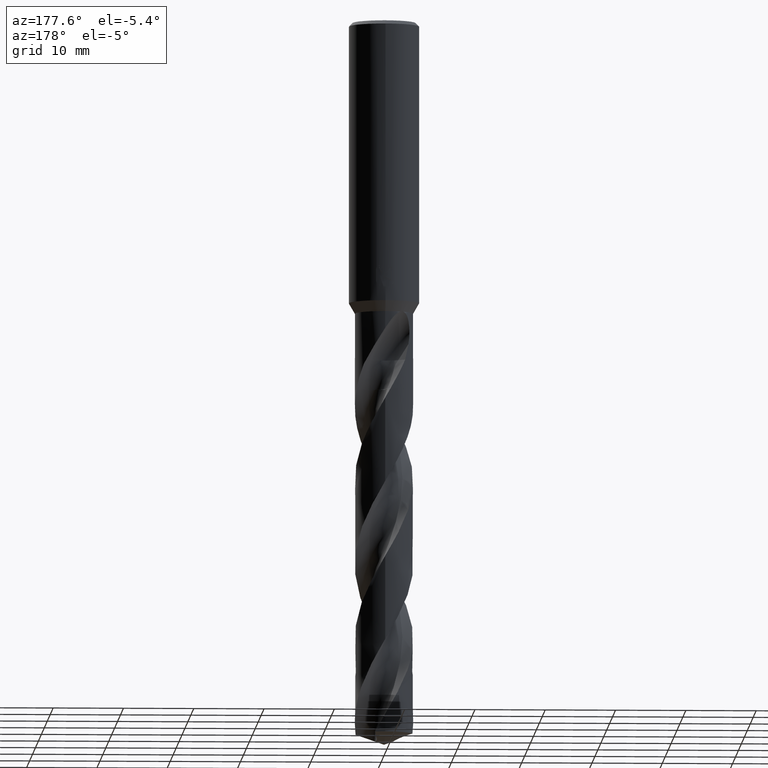
[diagram: clean part render]
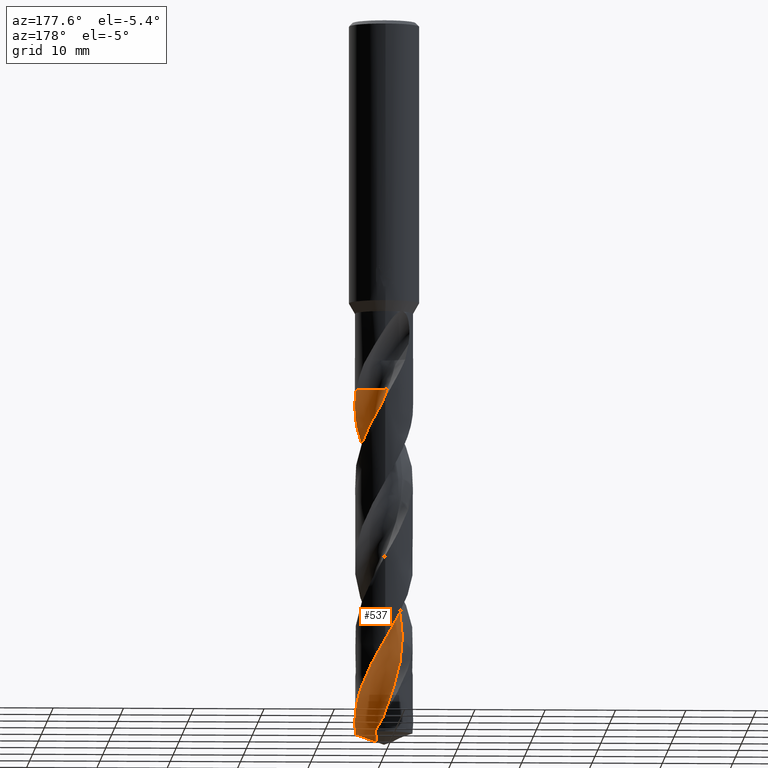
[diagram: same view with one face highlighted and labeled with its STEP entity id]
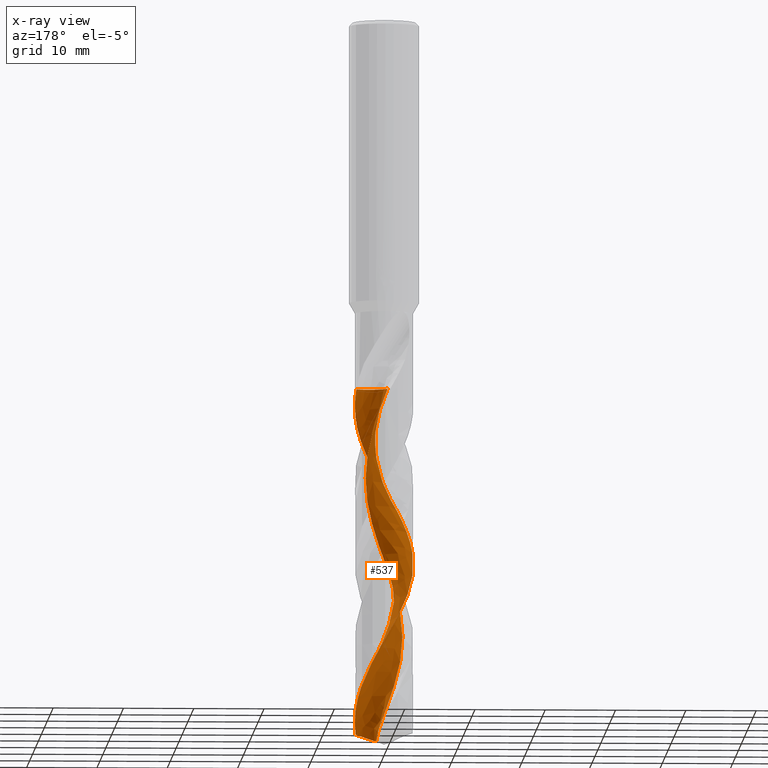
[diagram: x-ray of the same camera — body ghosted, the highlighted face saturated]
A machine part, auxiliary view. The second image highlights one B-rep face of the part: STEP entity #537.
The next image is the same camera in x-ray: the body ghosted, the highlighted face saturated — about 0% of this face is hidden behind the body in this view.
In plain terms, the highlighted face is a freeform B-spline surface patch.
Its self-contained STEP definition (entity closure, byte-faithful):
#365=EDGE_CURVE('',#841,#503,#942,.T.);
#479=VERTEX_POINT('',#1068);
#503=VERTEX_POINT('',#1094);
#519=VERTEX_POINT('',#1111);
#537=ADVANCED_FACE('',(#1131),#1132,.F.);
#577=EDGE_CURVE('',#823,#857,#1174,.T.);
#603=EDGE_CURVE('',#479,#823,#1202,.T.);
#661=EDGE_CURVE('',#857,#519,#1266,.T.);
#763=EDGE_CURVE('',#503,#479,#1377,.T.);
#823=VERTEX_POINT('',#1443);
#841=VERTEX_POINT('',#1463);
#849=EDGE_CURVE('',#519,#841,#1471,.T.);
#857=VERTEX_POINT('',#1480);
#942=B_SPLINE_CURVE_WITH_KNOTS('',3,(#1902,#1903,#1904,#1905,#1906,#1907,#1908,#1909,#1910,#1911,#1912,#1913,#1914,#1915,#1916,#1917,#1918,#1919,#1920,#1921,#1922,#1923,#1924,#1925,#1926,#1927,#1928,#1929,#1930,#1931,#1932,#1933,#1934,#1935,#1936,#1937,#1938,#1939,#1940,#1941,#1942,#1943,#1944,#1945,#1946,#1947,#1948,#1949,#1950,#1951,#1952,#1953,#1954,#1955,#1956,#1957,#1958,#1959,#1960,#1961,#1962,#1963,#1964,#1965,#1966,#1967,#1968,#1969,#1970,#1971,#1972,#1973,#1974,#1975,#1976,#1977),.UNSPECIFIED.,.F.,.F.,(4,2,2,2,2,2,2,2,2,2,2,2,2,2,2,2,2,2,2,2,2,2,2,2,2,2,2,2,2,2,2,2,2,2,2,2,2,4),(0.0,0.733119956972787,3.94510880211504,4.34369132015959,5.3215141447552,6.125388429376,6.17531503567606,7.64100653939708,8.37814268858441,9.85272335328517,10.5758110706592,13.3147641877528,15.2496585516679,17.4122792368076,19.0765169832402,21.7618217115342,22.0958350211852,24.0512915420343,25.0094963465441,26.9498401406434,28.9094493709316,30.9614328814431,33.0449450139035,34.7077831832867,37.1913202388205,38.0880866907379,40.5056043126405,41.0414054151769,41.875265929891,45.110675784988,46.0814303767419,48.7278978306769,49.9996101217036,53.31564938732,53.729669338403,55.1829129238803,55.9086577497719,56.6352366159157),.UNSPECIFIED.);
#1068=CARTESIAN_POINT('',(-0.398107408837506,2.57817254575028,-52.405));
#1094=CARTESIAN_POINT('',(3.98769573545959,1.14889200629911,-52.4050000000001));
#1111=CARTESIAN_POINT('',(-7.58148478319528E-015,4.14997308674581,-88.27793528246));
#1131=FACE_OUTER_BOUND('',#3294,.T.);
#1132=B_SPLINE_SURFACE_WITH_KNOTS('',3,3,((#3295,#3296,#3297,#3298,#3299,#3300,#3301,#3302,#3303,#3304,#3305,#3306,#3307,#3308,#3309,#3310,#3311,#3312,#3313,#3314,#3315,#3316,#3317,#3318,#3319,#3320,#3321,#3322,#3323,#3324,#3325,#3326,#3327,#3328,#3329,#3330,#3331,#3332,#3333,#3334,#3335,#3336,#3337,#3338,#3339,#3340,#3341,#3342,#3343,#3344,#3345,#3346,#3347,#3348,#3349,#3350,#3351,#3352,#3353,#3354,#3355,#3356),(#3357,#3358,#3359,#3360,#3361,#3362,#3363,#3364,#3365,#3366,#3367,#3368,#3369,#3370,#3371,#3372,#3373,#3374,#3375,#3376,#3377,#3378,#3379,#3380,#3381,#3382,#3383,#3384,#3385,#3386,#3387,#3388,#3389,#3390,#3391,#3392,#3393,#3394,#3395,#3396,#3397,#3398,#3399,#3400,#3401,#3402,#3403,#3404,#3405,#3406,#3407,#3408,#3409,#3410,#3411,#3412,#3413,#3414,#3415,#3416,#3417,#3418),(#3419,#3420,#3421,#3422,#3423,#3424,#3425,#3426,#3427,#3428,#3429,#3430,#3431,#3432,#3433,#3434,#3435,#3436,#3437,#3438,#3439,#3440,#3441,#3442,#3443,#3444,#3445,#3446,#3447,#3448,#3449,#3450,#3451,#3452,#3453,#3454,#3455,#3456,#3457,#3458,#3459,#3460,#3461,#3462,#3463,#3464,#3465,#3466,#3467,#3468,#3469,#3470,#3471,#3472,#3473,#3474,#3475,#3476,#3477,#3478,#3479,#3480),(#3481,#3482,#3483,#3484,#3485,#3486,#3487,#3488,#3489,#3490,#3491,#3492,#3493,#3494,#3495,#3496,#3497,#3498,#3499,#3500,#3501,#3502,#3503,#3504,#3505,#3506,#3507,#3508,#3509,#3510,#3511,#3512,#3513,#3514,#3515,#3516,#3517,#3518,#3519,#3520,#3521,#3522,#3523,#3524,#3525,#3526,#3527,#3528,#3529,#3530,#3531,#3532,#3533,#3534,#3535,#3536,#3537,#3538,#3539,#3540,#3541,#3542),(#3543,#3544,#3545,#3546,#3547,#3548,#3549,#3550,#3551,#3552,#3553,#3554,#3555,#3556,#3557,#3558,#3559,#3560,#3561,#3562,#3563,#3564,#3565,#3566,#3567,#3568,#3569,#3570,#3571,#3572,#3573,#3574,#3575,#3576,#3577,#3578,#3579,#3580,#3581,#3582,#3583,#3584,#3585,#3586,#3587,#3588,#3589,#3590,#3591,#3592,#3593,#3594,#3595,#3596,#3597,#3598,#3599,#3600,#3601,#3602,#3603,#3604),(#3605,#3606,#3607,#3608,#3609,#3610,#3611,#3612,#3613,#3614,#3615,#3616,#3617,#3618,#3619,#3620,#3621,#3622,#3623,#3624,#3625,#3626,#3627,#3628,#3629,#3630,#3631,#3632,#3633,#3634,#3635,#3636,#3637,#3638,#3639,#3640,#3641,#3642,#3643,#3644,#3645,#3646,#3647,#3648,#3649,#3650,#3651,#3652,#3653,#3654,#3655,#3656,#3657,#3658,#3659,#3660,#3661,#3662,#3663,#3664,#3665,#3666),(#3667,#3668,#3669,#3670,#3671,#3672,#3673,#3674,#3675,#3676,#3677,#3678,#3679,#3680,#3681,#3682,#3683,#3684,#3685,#3686,#3687,#3688,#3689,#3690,#3691,#3692,#3693,#3694,#3695,#3696,#3697,#3698,#3699,#3700,#3701,#3702,#3703,#3704,#3705,#3706,#3707,#3708,#3709,#3710,#3711,#3712,#3713,#3714,#3715,#3716,#3717,#3718,#3719,#3720,#3721,#3722,#3723,#3724,#3725,#3726,#3727,#3728),(#3729,#3730,#3731,#3732,#3733,#3734,#3735,#3736,#3737,#3738,#3739,#3740,#3741,#3742,#3743,#3744,#3745,#3746,#3747,#3748,#3749,#3750,#3751,#3752,#3753,#3754,#3755,#3756,#3757,#3758,#3759,#3760,#3761,#3762,#3763,#3764,#3765,#3766,#3767,#3768,#3769,#3770,#3771,#3772,#3773,#3774,#3775,#3776,#3777,#3778,#3779,#3780,#3781,#3782,#3783,#3784,#3785,#3786,#3787,#3788,#3789,#3790),(#3791,#3792,#3793,#3794,#3795,#3796,#3797,#3798,#3799,#3800,#3801,#3802,#3803,#3804,#3805,#3806,#3807,#3808,#3809,#3810,#3811,#3812,#3813,#3814,#3815,#3816,#3817,#3818,#3819,#3820,#3821,#3822,#3823,#3824,#3825,#3826,#3827,#3828,#3829,#3830,#3831,#3832,#3833,#3834,#3835,#3836,#3837,#3838,#3839,#3840,#3841,#3842,#3843,#3844,#3845,#3846,#3847,#3848,#3849,#3850,#3851,#3852),(#3853,#3854,#3855,#3856,#3857,#3858,#3859,#3860,#3861,#3862,#3863,#3864,#3865,#3866,#3867,#3868,#3869,#3870,#3871,#3872,#3873,#3874,#3875,#3876,#3877,#3878,#3879,#3880,#3881,#3882,#3883,#3884,#3885,#3886,#3887,#3888,#3889,#3890,#3891,#3892,#3893,#3894,#3895,#3896,#3897,#3898,#3899,#3900,#3901,#3902,#3903,#3904,#3905,#3906,#3907,#3908,#3909,#3910,#3911,#3912,#3913,#3914),(#3915,#3916,#3917,#3918,#3919,#3920,#3921,#3922,#3923,#3924,#3925,#3926,#3927,#3928,#3929,#3930,#3931,#3932,#3933,#3934,#3935,#3936,#3937,#3938,#3939,#3940,#3941,#3942,#3943,#3944,#3945,#3946,#3947,#3948,#3949,#3950,#3951,#3952,#3953,#3954,#3955,#3956,#3957,#3958,#3959,#3960,#3961,#3962,#3963,#3964,#3965,#3966,#3967,#3968,#3969,#3970,#3971,#3972,#3973,#3974,#3975,#3976)),.UNSPECIFIED.,.F.,.F.,.F.,(4,1,1,1,1,1,1,1,4),(4,1,2,2,2,2,2,1,2,2,2,1,2,1,2,1,2,1,2,1,2,1,2,1,2,1,2,1,2,1,2,2,2,2,2,2,4),(9.43504944246708E-017,0.392701207274564,0.785402414549128,1.17810362182369,1.57080482909826,1.96350603637282,2.35620724364738,2.74890845092195,3.14160965819651),(0.0,0.549505977762357,1.09901195552471,2.19802391104943,3.29703586657414,4.39604782209886,5.49505977762357,6.59407173314829,8.79209564419772,10.9901195552471,13.1881434662966,15.386167377346,17.5841912883954,19.7822151994449,21.9802391104943,24.1782630215437,26.3762869325932,28.5743108436426,30.772334754692,32.9703586657414,35.1683825767909,37.3664064878403,39.5644303988897,41.7624543099392,43.9604782209886,46.158502132038,48.3565260430875,50.5545499541369,52.7525738651863,54.9505977762357,57.1486216872852,59.3466455983346,61.544669509384,63.7426934204335,65.9407173314829,68.1387412425323,70.3367651535818),.UNSPECIFIED.);
#1174=B_SPLINE_CURVE_WITH_KNOTS('',3,(#4802,#4803,#4804,#4805,#4806,#4807,#4808,#4809,#4810,#4811,#4812,#4813,#4814,#4815,#4816,#4817,#4818,#4819,#4820,#4821),.UNSPECIFIED.,.F.,.F.,(4,2,2,2,2,2,2,2,2,4),(0.0,1.31197181105816,2.05253261432778,2.87275551036689,3.56235032638412,4.39056472582567,5.33534818678289,6.40222539253745,7.51620272135987,8.63585141044448),.UNSPECIFIED.);
#1202=B_SPLINE_CURVE_WITH_KNOTS('',3,(#5199,#5200,#5201,#5202,#5203,#5204,#5205,#5206,#5207,#5208,#5209,#5210,#5211,#5212,#5213,#5214,#5215,#5216,#5217,#5218,#5219,#5220,#5221,#5222,#5223,#5224,#5225,#5226,#5227,#5228,#5229,#5230,#5231,#5232,#5233,#5234,#5235,#5236,#5237,#5238,#5239,#5240,#5241,#5242,#5243,#5244,#5245,#5246,#5247,#5248,#5249,#5250,#5251,#5252,#5253,#5254,#5255,#5256,#5257,#5258,#5259,#5260),.UNSPECIFIED.,.F.,.F.,(4,1,2,2,2,2,2,1,2,2,2,1,2,1,2,1,2,1,2,1,2,1,2,1,2,1,2,1,2,1,2,2,2,2,2,2,4),(0.0,0.549505977762357,1.09901195552471,2.19802391104943,3.29703586657414,4.39604782209886,5.49505977762357,6.59407173314829,8.79209564419772,10.9901195552471,13.1881434662966,15.386167377346,17.5841912883954,19.7822151994449,21.9802391104943,24.1782630215437,26.3762869325932,28.5743108436426,30.772334754692,32.9703586657414,35.1683825767909,37.3664064878403,39.5644303988897,41.7624543099392,43.9604782209886,46.158502132038,48.3565260430875,50.5545499541369,52.7525738651863,54.9505977762357,57.1486216872852,59.3466455983346,61.544669509384,63.7426934204335,65.9407173314829,68.1387412425323,70.3367651535818),.UNSPECIFIED.);
#1266=B_SPLINE_CURVE_WITH_KNOTS('',3,(#6406,#6407,#6408,#6409,#6410,#6411,#6412,#6413,#6414,#6415,#6416,#6417,#6418,#6419,#6420,#6421,#6422,#6423,#6424,#6425,#6426,#6427,#6428,#6429,#6430,#6431,#6432,#6433,#6434,#6435,#6436,#6437,#6438,#6439,#6440,#6441,#6442,#6443,#6444,#6445,#6446,#6447,#6448,#6449,#6450,#6451,#6452,#6453,#6454,#6455,#6456,#6457,#6458,#6459,#6460,#6461,#6462,#6463,#6464,#6465,#6466,#6467,#6468,#6469,#6470,#6471,#6472,#6473,#6474,#6475,#6476,#6477,#6478,#6479,#6480,#6481),.UNSPECIFIED.,.F.,.F.,(4,2,2,2,2,2,2,2,2,2,2,2,2,2,2,2,2,2,2,2,2,2,2,2,2,2,2,2,2,2,2,2,2,2,2,2,2,4),(0.0,0.733119956972787,3.94510880211504,4.34369132015959,5.3215141447552,6.125388429376,6.17531503567606,7.64100653939708,8.37814268858441,9.85272335328517,10.5758110706592,13.3147641877528,15.2496585516679,17.4122792368076,19.0765169832402,21.7618217115342,22.0958350211852,24.0512915420343,25.0094963465441,26.9498401406434,28.9094493709316,30.9614328814431,33.0449450139035,34.7077831832867,37.1913202388205,38.0880866907379,40.5056043126405,41.0414054151769,41.875265929891,45.110675784988,46.0814303767419,48.7278978306769,49.9996101217036,53.31564938732,53.729669338403,55.1829129238803,55.9086577497719,56.6352366159157),.UNSPECIFIED.);
#1377=B_SPLINE_CURVE_WITH_KNOTS('',3,(#8569,#8570,#8571,#8572,#8573,#8574,#8575,#8576,#8577,#8578,#8579,#8580,#8581,#8582,#8583,#8584,#8585,#8586,#8587,#8588),.UNSPECIFIED.,.F.,.F.,(4,2,2,2,2,2,2,2,2,4),(-8.71540262875277,-8.13886163211146,-7.56220455725384,-6.48088888306743,-5.39970455491079,-4.31912458526515,-3.23926740192565,-2.15982389357947,-1.0802323624858,-0.0),.UNSPECIFIED.);
#1443=CARTESIAN_POINT('',(1.18825652938407,2.33104560811908,-102.047695881095));
#1463=CARTESIAN_POINT('',(-2.80594552433692E-012,-4.14992711721499,-65.7117116335832));
#1471=B_SPLINE_CURVE_WITH_KNOTS('',3,(#9680,#9681,#9682,#9683,#9684,#9685,#9686,#9687,#9688,#9689,#9690,#9691,#9692,#9693,#9694,#9695,#9696,#9697,#9698,#9699,#9700,#9701,#9702,#9703,#9704,#9705,#9706,#9707,#9708,#9709,#9710,#9711,#9712,#9713,#9714,#9715,#9716,#9717,#9718,#9719,#9720,#9721,#9722,#9723,#9724,#9725,#9726,#9727,#9728,#9729,#9730,#9731,#9732,#9733,#9734,#9735,#9736,#9737,#9738,#9739,#9740,#9741,#9742,#9743,#9744,#9745,#9746,#9747,#9748,#9749,#9750,#9751,#9752,#9753,#9754,#9755),.UNSPECIFIED.,.F.,.F.,(4,2,2,2,2,2,2,2,2,2,2,2,2,2,2,2,2,2,2,2,2,2,2,2,2,2,2,2,2,2,2,2,2,2,2,2,2,4),(0.0,0.733119956972787,3.94510880211504,4.34369132015959,5.3215141447552,6.125388429376,6.17531503567606,7.64100653939708,8.37814268858441,9.85272335328517,10.5758110706592,13.3147641877528,15.2496585516679,17.4122792368076,19.0765169832402,21.7618217115342,22.0958350211852,24.0512915420343,25.0094963465441,26.9498401406434,28.9094493709316,30.9614328814431,33.0449450139035,34.7077831832867,37.1913202388205,38.0880866907379,40.5056043126405,41.0414054151769,41.875265929891,45.110675784988,46.0814303767419,48.7278978306769,49.9996101217036,53.31564938732,53.729669338403,55.1829129238803,55.9086577497719,56.6352366159157),.UNSPECIFIED.);
#1480=CARTESIAN_POINT('',(4.00286083124981,-1.09526488378203,-101.489523527795));
#1902=CARTESIAN_POINT('',(4.00286083124981,-1.09526488378202,-101.489523527795));
#1903=CARTESIAN_POINT('',(4.03504066248648,-0.977655729778559,-101.277743301167));
#1904=CARTESIAN_POINT('',(4.0620101134619,-0.8587976561445,-101.064850629843));
#1905=CARTESIAN_POINT('',(4.17914587398827,-0.210965989100467,-99.9207766537132));
#1906=CARTESIAN_POINT('',(4.17149755603666,0.330608218875049,-99.0052227546464));
#1907=CARTESIAN_POINT('',(4.04702340734772,0.921129932560936,-97.959398087409));
#1908=CARTESIAN_POINT('',(4.03172994681594,0.985910538007184,-97.8438313760292));
#1909=CARTESIAN_POINT('',(3.97357622791485,1.20820974396093,-97.4453482164901));
#1910=CARTESIAN_POINT('',(3.92294640379247,1.36369349705703,-97.1630093417234));
#1911=CARTESIAN_POINT('',(3.81410332213824,1.64106901730107,-96.6475302283008));
#1912=CARTESIAN_POINT('',(3.75899442628936,1.76362476432344,-96.4152861707443));
#1913=CARTESIAN_POINT('',(3.69433725076324,1.89059560057191,-96.1680921630285));
#1914=CARTESIAN_POINT('',(3.69053573688921,1.89800561360276,-96.1536413859247));
#1915=CARTESIAN_POINT('',(3.57429428025914,2.12291439141822,-95.7144563440186));
#1916=CARTESIAN_POINT('',(3.44275266582827,2.33024440801015,-95.2921013731676));
#1917=CARTESIAN_POINT('',(3.21841282557471,2.62286626541515,-94.6543537698572));
#1918=CARTESIAN_POINT('',(3.13905767693198,2.71733090986377,-94.4407123746996));
#1919=CARTESIAN_POINT('',(2.88883970062494,2.98960847093463,-93.8003976267416));
#1920=CARTESIAN_POINT('',(2.70643188540097,3.15562738726885,-93.3758597598053));
#1921=CARTESIAN_POINT('',(2.41480374602771,3.37721742738981,-92.7389793928725));
#1922=CARTESIAN_POINT('',(2.31552819667441,3.44605829210536,-92.5284513484144));
#1923=CARTESIAN_POINT('',(1.8254702332528,3.75500252988792,-91.523541887376));
#1924=CARTESIAN_POINT('',(1.40007493471842,3.93348288145374,-90.7451699051396));
#1925=CARTESIAN_POINT('',(0.638700779342066,4.1133012179047,-89.3902404746062));
#1926=CARTESIAN_POINT('',(0.315930291926815,4.15064146334367,-88.8241412632067));
#1927=CARTESIAN_POINT('',(-0.371424497483338,4.14920690557139,-87.6357846317184));
#1928=CARTESIAN_POINT('',(-0.732132202387111,4.100875632726,-87.0167847214755));
#1929=CARTESIAN_POINT('',(-1.35033548197232,3.93400247519706,-85.9064139442077));
#1930=CARTESIAN_POINT('',(-1.61156403212437,3.83447645334053,-85.4194244744929));
#1931=CARTESIAN_POINT('',(-2.26444502435378,3.50683341030219,-84.1562567906033));
#1932=CARTESIAN_POINT('',(-2.63062369393693,3.24081149633209,-83.3917135038544));
#1933=CARTESIAN_POINT('',(-2.98550012374294,2.88306704983214,-82.513328257383));
#1934=CARTESIAN_POINT('',(-3.0238541203386,2.84281453550983,-82.4161313763493));
#1935=CARTESIAN_POINT('',(-3.2819447847973,2.56078547501889,-81.7496506259069));
#1936=CARTESIAN_POINT('',(-3.47401251934536,2.29385455126859,-81.1865421793526));
#1937=CARTESIAN_POINT('',(-3.71107572644367,1.86442535438204,-80.3413228556286));
#1938=CARTESIAN_POINT('',(-3.78062271604783,1.71898202131481,-80.0639914275584));
#1939=CARTESIAN_POINT('',(-3.96469831925169,1.2686094203635,-79.2223282299774));
#1940=CARTESIAN_POINT('',(-4.05189438057894,0.954162118358683,-78.6541868548399));
#1941=CARTESIAN_POINT('',(-4.15164654977367,0.306926297522211,-77.5216684263746));
#1942=CARTESIAN_POINT('',(-4.16290265827382,-0.0229932785156876,-76.9589056942474));
#1943=CARTESIAN_POINT('',(-4.10598507661863,-0.693970910425318,-75.7943017105423));
#1944=CARTESIAN_POINT('',(-4.03438093793501,-1.03180975902313,-75.1935694549515));
#1945=CARTESIAN_POINT('',(-3.807141960678,-1.6882504709022,-73.9929434408302));
#1946=CARTESIAN_POINT('',(-3.65137941182757,-2.00285070475383,-73.3953527399993));
#1947=CARTESIAN_POINT('',(-3.30428560874711,-2.52614024522789,-72.3073159931905));
#1948=CARTESIAN_POINT('',(-3.12736833476617,-2.74217068780656,-71.8204139844206));
#1949=CARTESIAN_POINT('',(-2.6343315356382,-3.23359300563575,-70.6157125050947));
#1950=CARTESIAN_POINT('',(-2.29671141506972,-3.48136372228307,-69.9064263039631));
#1951=CARTESIAN_POINT('',(-1.79571481425161,-3.74431423443535,-68.9238881502605));
#1952=CARTESIAN_POINT('',(-1.65953704259056,-3.80661735439493,-68.662083968608));
#1953=CARTESIAN_POINT('',(-1.14422226664932,-4.00947206664943,-67.6991893791127));
#1954=CARTESIAN_POINT('',(-0.748132324834038,-4.10204530961418,-67.0084868052683));
#1955=CARTESIAN_POINT('',(-0.254267839120459,-4.1431067809232,-66.1526313644728));
#1956=CARTESIAN_POINT('',(-0.164602288709075,-4.14763005122323,-65.997407859339));
#1957=CARTESIAN_POINT('',(0.0644163039836582,-4.15176954151836,-65.6000369489836));
#1958=CARTESIAN_POINT('',(0.203409521168578,-4.14725538881042,-65.3571100580931));
#1959=CARTESIAN_POINT('',(0.877551823277802,-4.09158000033511,-64.1793252820707));
#1960=CARTESIAN_POINT('',(1.39952559092695,-3.94366546679327,-63.2701556996874));
#1961=CARTESIAN_POINT('',(2.02299721048937,-3.62703198088782,-62.0551889714989));
#1962=CARTESIAN_POINT('',(2.16211867667729,-3.54585654108135,-61.7734173071583));
#1963=CARTESIAN_POINT('',(2.66282846691524,-3.21319062504442,-60.7284349789827));
#1964=CARTESIAN_POINT('',(2.98864670263623,-2.91283555082892,-59.9787601427709));
#1965=CARTESIAN_POINT('',(3.39270231781552,-2.39923666256197,-58.8496719566002));
#1966=CARTESIAN_POINT('',(3.51047436151844,-2.22324949102425,-58.4813884890951));
#1967=CARTESIAN_POINT('',(3.88446541401151,-1.56051812174546,-57.1601372645202));
#1968=CARTESIAN_POINT('',(4.05701226116824,-1.03214539977411,-56.2206051409318));
#1969=CARTESIAN_POINT('',(4.12944504513786,-0.417279780090286,-55.1472271540825));
#1970=CARTESIAN_POINT('',(4.13578579817618,-0.348882635182004,-55.0279710183378));
#1971=CARTESIAN_POINT('',(4.15673085207903,-0.0394486097415502,-54.4904412809781));
#1972=CARTESIAN_POINT('',(4.15200104488188,0.202472240913653,-54.0744231552219));
#1973=CARTESIAN_POINT('',(4.1133363014577,0.562778204443053,-53.4475385616491));
#1974=CARTESIAN_POINT('',(4.09523841305259,0.682047458513638,-53.2387908634702));
#1975=CARTESIAN_POINT('',(4.04880526265808,0.918351010874795,-52.8208162804977));
#1976=CARTESIAN_POINT('',(4.02065364032981,1.03451142136638,-52.6122461849022));
#1977=CARTESIAN_POINT('',(3.9876645377204,1.14900027233581,-52.4048038270217));
#3294=EDGE_LOOP('',(#10128,#10129,#10130,#10131,#10132,#10133));
#3295=CARTESIAN_POINT('',(1.9563287635691,5.96799543356909,-48.2798));
#3296=CARTESIAN_POINT('',(2.07133184418657,5.96265865905519,-48.4221670891928));
#3297=CARTESIAN_POINT('',(2.30303779212482,5.93557598115044,-48.7079284244641));
#3298=CARTESIAN_POINT('',(2.53593062963545,5.86961039598909,-48.9948216248692));
#3299=CARTESIAN_POINT('',(2.88255766080883,5.73663527623382,-49.4243789891334));
#3300=CARTESIAN_POINT('',(3.10946235576527,5.61862503124751,-49.7104833923752));
#3301=CARTESIAN_POINT('',(3.53896863926455,5.31523500840786,-50.2761944010646));
#3302=CARTESIAN_POINT('',(3.74447708529443,5.1609048590831,-50.5592224397596));
#3303=CARTESIAN_POINT('',(4.14341580591705,4.85300784995462,-51.1303579919938));
#3304=CARTESIAN_POINT('',(4.33394729191043,4.68756899325326,-51.4160403420486));
#3305=CARTESIAN_POINT('',(4.69379051016016,4.33469744438157,-51.9875056331574));
#3306=CARTESIAN_POINT('',(4.86264300181705,4.14598936097947,-52.2728526682333));
#3307=CARTESIAN_POINT('',(5.1742243909507,3.74528105331821,-52.8420046020675));
#3308=CARTESIAN_POINT('',(5.60699378577342,3.11856597820699,-53.6965478837799));
#3309=CARTESIAN_POINT('',(5.92622407322636,2.42444238199345,-54.5520874460379));
#3310=CARTESIAN_POINT('',(6.23304742785495,1.45852136782541,-55.6923332695217));
#3311=CARTESIAN_POINT('',(6.33057676587924,0.958697764618339,-56.2623548331832));
#3312=CARTESIAN_POINT('',(6.40203043024827,-0.0519036601168251,-57.402359299149));
#3313=CARTESIAN_POINT('',(6.37877940769735,-0.561098422088632,-57.9725824625001));
#3314=CARTESIAN_POINT('',(6.20550255075853,-1.56081126573086,-59.1128280720577));
#3315=CARTESIAN_POINT('',(5.91998046641756,-2.53770895641472,-60.2524083534403));
#3316=CARTESIAN_POINT('',(5.41443570642024,-3.42240207005325,-61.3934130942411));
#3317=CARTESIAN_POINT('',(4.80115808035982,-4.23139211235909,-62.5334370507204));
#3318=CARTESIAN_POINT('',(4.09868418169674,-4.96838804190198,-63.6726927014511));
#3319=CARTESIAN_POINT('',(3.2436444178572,-5.5229303576386,-64.8135959721296));
#3320=CARTESIAN_POINT('',(2.32792034569009,-5.96109952199707,-65.9537866544987));
#3321=CARTESIAN_POINT('',(1.36589232731112,-6.29433725694936,-67.0931848390959));
#3322=CARTESIAN_POINT('',(0.351865123875245,-6.39534300936461,-68.2341029770483));
#3323=CARTESIAN_POINT('',(-0.662800065842918,-6.36512096400576,-69.3742295502317));
#3324=CARTESIAN_POINT('',(-1.67056886947461,-6.22045135021305,-70.5135877968594));
#3325=CARTESIAN_POINT('',(-2.61816534407258,-5.84551602789462,-71.6545109457381));
#3326=CARTESIAN_POINT('',(-3.50615965807331,-5.35359446808211,-72.7946557988917));
#3327=CARTESIAN_POINT('',(-4.33554517379502,-4.76311327274144,-73.9340180857029));
#3328=CARTESIAN_POINT('',(-5.00593011347014,-3.9956033999542,-75.0749341764689));
#3329=CARTESIAN_POINT('',(-5.56976653145679,-3.15146598817958,-76.2150766834496));
#3330=CARTESIAN_POINT('',(-6.03635428554485,-2.24657511800179,-77.3544438748071));
#3331=CARTESIAN_POINT('',(-6.28045927701482,-1.25717343918121,-78.4953630473858));
#3332=CARTESIAN_POINT('',(-6.39471372227785,-0.248482574509615,-79.6355000741497));
#3333=CARTESIAN_POINT('',(-6.39469460991855,0.769628665517976,-80.7748626631531));
#3334=CARTESIAN_POINT('',(-6.15822752142311,1.76087807709364,-81.9157914382591));
#3335=CARTESIAN_POINT('',(-5.79751839026421,2.70975230419673,-83.0559489579975));
#3336=CARTESIAN_POINT('',(-5.33091165223373,3.61461692392781,-84.1953103249532));
#3337=CARTESIAN_POINT('',(-4.66648226518123,4.38728330901314,-85.3361910178887));
#3338=CARTESIAN_POINT('',(-3.91107314121439,5.06542864740424,-86.4762833428933));
#3339=CARTESIAN_POINT('',(-3.08167026135876,5.65599218319526,-87.615667762622));
#3340=CARTESIAN_POINT('',(-2.13685561423103,6.0380857914733,-88.7566994762392));
#3341=CARTESIAN_POINT('',(-1.15447673038976,6.29406403460232,-89.8969580065109));
#3342=CARTESIAN_POINT('',(-0.146849441788722,6.43830309739552,-91.0362336392994));
#3343=CARTESIAN_POINT('',(0.867566969012256,6.34611743777087,-92.176935096463));
#3344=CARTESIAN_POINT('',(1.85803893337474,6.12611353846042,-93.3169739900313));
#3345=CARTESIAN_POINT('',(2.33956209023123,5.95954037117196,-93.8868898556577));
#3346=CARTESIAN_POINT('',(3.25003054893819,5.51514700535519,-95.0271675584624));
#3347=CARTESIAN_POINT('',(3.67899088845412,5.24060699346208,-95.5972931398503));
#3348=CARTESIAN_POINT('',(4.45885909311487,4.59345056458305,-96.7373137188287));
#3349=CARTESIAN_POINT('',(4.81087905656002,4.22525028495235,-97.3073598093759));
#3350=CARTESIAN_POINT('',(5.41599495121214,3.41213192848905,-98.4477034376239));
#3351=CARTESIAN_POINT('',(5.67136437198596,2.97152017202301,-99.0178209674981));
#3352=CARTESIAN_POINT('',(6.06884607565863,2.03981850178856,-100.15763973115));
#3353=CARTESIAN_POINT('',(6.21294140973419,1.55097199563524,-100.727690544709));
#3354=CARTESIAN_POINT('',(6.3744067943284,0.549589701220453,-101.867520652683));
#3355=CARTESIAN_POINT('',(6.40018709968937,0.04295825767337,-102.43660269716));
#3356=CARTESIAN_POINT('',(6.37121430735939,-0.459501435893471,-103.006521964283));
#3357=CARTESIAN_POINT('',(2.21240235877237,5.71190058455495,-48.2798));
#3358=CARTESIAN_POINT('',(2.32756361229884,5.70672196910783,-48.4221712961626));
#3359=CARTESIAN_POINT('',(2.55742418807437,5.67776704141504,-48.7080402604644));
#3360=CARTESIAN_POINT('',(2.78398673723302,5.60567480064682,-48.9951665035543));
#3361=CARTESIAN_POINT('',(3.117357686285,5.4606470604718,-49.424982201162));
#3362=CARTESIAN_POINT('',(3.33259243995126,5.33277725805764,-49.7112450314092));
#3363=CARTESIAN_POINT('',(3.73199894987723,5.00825675116741,-50.2763573449529));
#3364=CARTESIAN_POINT('',(3.92378748716661,4.84595671168235,-50.5591037624359));
#3365=CARTESIAN_POINT('',(4.29851409649935,4.52545786546848,-51.1303853479528));
#3366=CARTESIAN_POINT('',(4.47653676585401,4.3543746689267,-51.4161583166757));
#3367=CARTESIAN_POINT('',(4.81050987309622,3.99158431392456,-51.9878179227277));
#3368=CARTESIAN_POINT('',(4.96576562790019,3.79851364293795,-52.273208078816));
#3369=CARTESIAN_POINT('',(5.2488882321556,3.3905996211421,-52.8422321616548));
#3370=CARTESIAN_POINT('',(5.63892105229931,2.75582014795941,-53.6966973463485));
#3371=CARTESIAN_POINT('',(5.91518781720302,2.06130153683843,-54.5522970626367));
#3372=CARTESIAN_POINT('',(6.16457649083972,1.10172370896173,-55.6925573501747));
#3373=CARTESIAN_POINT('',(6.23420369598086,0.608411931610741,-56.2625720774482));
#3374=CARTESIAN_POINT('',(6.25150155609104,-0.382552691001964,-57.4025574624473));
#3375=CARTESIAN_POINT('',(6.20255464113285,-0.878828977054127,-57.9728018007917));
#3376=CARTESIAN_POINT('',(5.98073236340228,-1.84626880167522,-59.113061857367));
#3377=CARTESIAN_POINT('',(5.65182660827033,-2.78600243549361,-60.2525641153093));
#3378=CARTESIAN_POINT('',(5.11244097278385,-3.62443481856041,-61.3936888021099));
#3379=CARTESIAN_POINT('',(4.47059564700553,-4.38221085613725,-62.5336964034749));
#3380=CARTESIAN_POINT('',(3.74652067138908,-5.06608576244788,-63.672828915373));
#3381=CARTESIAN_POINT('',(2.8826336365969,-5.5640068389334,-64.813838028604));
#3382=CARTESIAN_POINT('',(1.96500061592627,-5.94363247961992,-65.9540355256041));
#3383=CARTESIAN_POINT('',(1.00811309000876,-6.21979069709722,-67.0933303931726));
#3384=CARTESIAN_POINT('',(0.0121695554722421,-6.2664126532245,-68.2343564023383));
#3385=CARTESIAN_POINT('',(-0.97736273427705,-6.18327980261384,-69.3744809311324));
#3386=CARTESIAN_POINT('',(-1.95440585282558,-5.99023498275822,-70.5137302505482));
#3387=CARTESIAN_POINT('',(-2.86100569003893,-5.57524771024583,-71.6547620450403));
#3388=CARTESIAN_POINT('',(-3.70240575690866,-5.04781081517436,-72.7949073070717));
#3389=CARTESIAN_POINT('',(-4.48230570280079,-4.4284126499261,-73.9341613073551));
#3390=CARTESIAN_POINT('',(-5.09790059483307,-3.64409586098172,-75.0751850005023));
#3391=CARTESIAN_POINT('',(-5.60405714140514,-2.78974781502319,-76.2153276437756));
#3392=CARTESIAN_POINT('',(-6.01341539958462,-1.88183288997969,-77.3545871743903));
#3393=CARTESIAN_POINT('',(-6.20111654186199,-0.90260179243119,-78.4956144348104));
#3394=CARTESIAN_POINT('',(-6.25941865873725,0.0887285442679188,-79.6357507801113));
#3395=CARTESIAN_POINT('',(-6.2071454493587,1.08329787860511,-80.775005154804));
#3396=CARTESIAN_POINT('',(-5.9252097583475,2.03965928899346,-81.916043219095));
#3397=CARTESIAN_POINT('',(-5.52272808072641,2.94746285107053,-83.0562030558079));
#3398=CARTESIAN_POINT('',(-5.020465799076,3.80745496912974,-84.1954558843664));
#3399=CARTESIAN_POINT('',(-4.33161455946303,4.52827804168992,-85.336439298718));
#3400=CARTESIAN_POINT('',(-3.5579024781322,5.15078760833888,-86.4765248090916));
#3401=CARTESIAN_POINT('',(-2.71737018474112,5.68513720871071,-87.6158040194868));
#3402=CARTESIAN_POINT('',(-1.77460589447613,6.009919324204,-88.7569593862325));
#3403=CARTESIAN_POINT('',(-0.801477961633459,6.2079836474174,-89.8972341353259));
#3404=CARTESIAN_POINT('',(0.190245436991259,6.29715342312566,-91.036389220633));
#3405=CARTESIAN_POINT('',(1.1766735109916,6.15516995047273,-92.1771685765358));
#3406=CARTESIAN_POINT('',(2.13263062588345,5.88819135170189,-93.3171934319643));
#3407=CARTESIAN_POINT('',(2.59445488478732,5.70066280039497,-93.8870880409084));
#3408=CARTESIAN_POINT('',(3.4608001837764,5.21923510103702,-95.0273835980464));
#3409=CARTESIAN_POINT('',(3.86579681383204,4.92900470626768,-95.5975153773997));
#3410=CARTESIAN_POINT('',(4.59391890182194,4.2561805268481,-96.7375234174572));
#3411=CARTESIAN_POINT('',(4.9189075440445,3.8783736427442,-97.3075716639055));
#3412=CARTESIAN_POINT('',(5.46764465070207,3.05251319557165,-98.4479308295122));
#3413=CARTESIAN_POINT('',(5.69454096676614,2.60896097550415,-99.0180368262741));
#3414=CARTESIAN_POINT('',(6.03447955163144,1.67814869127731,-100.15782669589));
#3415=CARTESIAN_POINT('',(6.1500545207168,1.19312188425605,-100.727908893746));
#3416=CARTESIAN_POINT('',(6.25498376748711,0.20644345522157,-101.867784932332));
#3417=CARTESIAN_POINT('',(6.25458185723293,-0.289779601996973,-102.43678491234));
#3418=CARTESIAN_POINT('',(6.20130720492306,-0.779329185868585,-103.006733482376));
#3419=CARTESIAN_POINT('',(2.622602067895,5.09798758564768,-48.2798));
#3420=CARTESIAN_POINT('',(2.73814249393689,5.09306232417295,-48.422178214853));
#3421=CARTESIAN_POINT('',(2.96356857091642,5.06109753322252,-48.7082241954999));
#3422=CARTESIAN_POINT('',(3.17503693213401,4.97927178478671,-48.9957337165096));
#3423=CARTESIAN_POINT('',(3.47710854017382,4.81541516856365,-49.4259742931249));
#3424=CARTESIAN_POINT('',(3.6650875908319,4.67247096933817,-49.7124976835026));
#3425=CARTESIAN_POINT('',(3.99590411671154,4.31766843443338,-50.2766253337308));
#3426=CARTESIAN_POINT('',(4.15708932277907,4.14488781664526,-50.5589085728294));
#3427=CARTESIAN_POINT('',(4.47839061720594,3.80881892400283,-51.1304303433481));
#3428=CARTESIAN_POINT('',(4.62915638004361,3.63142369941477,-51.4163523444332));
#3429=CARTESIAN_POINT('',(4.90745581799869,3.25908744262585,-51.9883315408784));
#3430=CARTESIAN_POINT('',(5.0337889772281,3.06270032181599,-52.2737926105529));
#3431=CARTESIAN_POINT('',(5.25714055495831,2.65169500688883,-52.8426064279276));
#3432=CARTESIAN_POINT('',(5.55851127905382,2.01778494024069,-53.6969431541875));
#3433=CARTESIAN_POINT('',(5.74871203077137,1.33956147549713,-54.5526418375788));
#3434=CARTESIAN_POINT('',(5.88577796072729,0.415507037796919,-55.6929258674148));
#3435=CARTESIAN_POINT('',(5.9022021275299,-0.0536881652387689,-56.2629293388084));
#3436=CARTESIAN_POINT('',(5.81902012762509,-0.983851647111595,-57.4028834126213));
#3437=CARTESIAN_POINT('',(5.72382939086294,-1.44407810962275,-57.9731625510085));
#3438=CARTESIAN_POINT('',(5.41777054287958,-2.32768073054182,-59.1134463494067));
#3439=CARTESIAN_POINT('',(5.01689450847009,-3.17584977383621,-60.2528202970284));
#3440=CARTESIAN_POINT('',(4.42823757408633,-3.90832291425957,-61.3941422548071));
#3441=CARTESIAN_POINT('',(3.74963479359356,-4.55233216183011,-62.5341229530346));
#3442=CARTESIAN_POINT('',(3.003491152007,-5.12139742379719,-63.6730529449796));
#3443=CARTESIAN_POINT('',(2.14442944068827,-5.50258160461692,-64.8142361323628));
#3444=CARTESIAN_POINT('',(1.24625997886456,-5.76438576267382,-65.9544448394699));
#3445=CARTESIAN_POINT('',(0.322349746732242,-5.92845315770837,-67.0935697425509));
#3446=CARTESIAN_POINT('',(-0.615807621731475,-5.8735216171503,-68.2347732844779));
#3447=CARTESIAN_POINT('',(-1.53404401277783,-5.6945838943713,-69.3748942924601));
#3448=CARTESIAN_POINT('',(-2.43041156997952,-5.41702754777158,-70.5139646024413));
#3449=CARTESIAN_POINT('',(-3.23910825710519,-4.93825606112909,-71.6551749787188));
#3450=CARTESIAN_POINT('',(-3.97321624767561,-4.35833231896791,-72.7953210006893));
#3451=CARTESIAN_POINT('',(-4.64266668194912,-3.70079102460277,-73.9343968215113));
#3452=CARTESIAN_POINT('',(-5.14202103176305,-2.90465546415008,-75.0755975600438));
#3453=CARTESIAN_POINT('',(-5.52878174753131,-2.05282762787013,-76.2157403577515));
#3454=CARTESIAN_POINT('',(-5.82250254741544,-1.16162402079092,-77.3548228917544));
#3455=CARTESIAN_POINT('',(-5.9014641921885,-0.225159502093002,-78.4960278495077));
#3456=CARTESIAN_POINT('',(-5.8547888836512,0.709206857510101,-79.6361631471889));
#3457=CARTESIAN_POINT('',(-5.70739126152396,1.63592269698431,-80.7752394083201));
#3458=CARTESIAN_POINT('',(-5.34841115914838,2.50444165871306,-81.9164574794746));
#3459=CARTESIAN_POINT('',(-4.87873431219587,3.31350969907753,-83.0566208027692));
#3460=CARTESIAN_POINT('',(-4.32302015381392,4.06959681379531,-84.1956953587425));
#3461=CARTESIAN_POINT('',(-3.60595163757241,4.67704341107401,-85.3368476505881));
#3462=CARTESIAN_POINT('',(-2.81776570861158,5.18102643510529,-86.4769219332327));
#3463=CARTESIAN_POINT('',(-1.97733353337945,5.59854608737692,-87.6160280653783));
#3464=CARTESIAN_POINT('',(-1.06145976309162,5.80954465425874,-88.7573869697585));
#3465=CARTESIAN_POINT('',(-0.129860071812213,5.89548434190552,-89.8976881628496));
#3466=CARTESIAN_POINT('',(0.808163121049272,5.88086310004799,-91.0366451802703));
#3467=CARTESIAN_POINT('',(1.71882355392747,5.65043494537435,-92.1775525343073));
#3468=CARTESIAN_POINT('',(2.58708537363239,5.30325199137948,-93.3175543848934));
#3469=CARTESIAN_POINT('',(3.00118692043814,5.0816550735775,-93.8874140501147));
#3470=CARTESIAN_POINT('',(3.76457728637594,4.54372045002449,-95.0277388551767));
#3471=CARTESIAN_POINT('',(4.11541707108184,4.23164535627502,-95.5978809748729));
#3472=CARTESIAN_POINT('',(4.72986161203277,3.52807413546563,-96.7378682157453));
#3473=CARTESIAN_POINT('',(4.99697878077896,3.14180741318628,-97.3079200349771));
#3474=CARTESIAN_POINT('',(5.42791498614683,2.31288794421559,-98.4483048772252));
#3475=CARTESIAN_POINT('',(5.59670775729567,1.87477876542705,-99.0183917732722));
#3476=CARTESIAN_POINT('',(5.82193802951113,0.968627686205542,-100.158134263726));
#3477=CARTESIAN_POINT('',(5.88200323622204,0.502580172986162,-100.728267864243));
#3478=CARTESIAN_POINT('',(5.87973117402955,-0.432214358376409,-101.868219730439));
#3479=CARTESIAN_POINT('',(5.83111490682082,-0.897213286326102,-102.437084432376));
#3480=CARTESIAN_POINT('',(5.73438065922488,-1.35128412420965,-103.007081361466));
#3481=CARTESIAN_POINT('',(2.83869302056962,4.01166903396804,-48.2798000000001));
#3482=CARTESIAN_POINT('',(2.95490439440474,4.00687723827746,-48.4221825337513));
#3483=CARTESIAN_POINT('',(3.17245669779089,3.9732866439498,-48.7083390182693));
#3484=CARTESIAN_POINT('',(3.35741825820605,3.88663552229145,-48.9960878049909));
#3485=CARTESIAN_POINT('',(3.60530275527351,3.71465034976918,-49.4265936137864));
#3486=CARTESIAN_POINT('',(3.74685396750075,3.56645985207132,-49.7132796617865));
#3487=CARTESIAN_POINT('',(3.96522482048684,3.20906392109959,-50.2767926289826));
#3488=CARTESIAN_POINT('',(4.07797960813521,3.03932571376397,-50.5587867228553));
#3489=CARTESIAN_POINT('',(4.31629893837016,2.71234672624461,-51.1304584332551));
#3490=CARTESIAN_POINT('',(4.42566503394307,2.54185035192389,-51.4164734677289));
#3491=CARTESIAN_POINT('',(4.62132474659324,2.18824349817273,-51.9886521718109));
#3492=CARTESIAN_POINT('',(4.70566932956244,2.00386299679517,-52.274157507536));
#3493=CARTESIAN_POINT('',(4.84440759662069,1.62288527358432,-52.8428400690956));
#3494=CARTESIAN_POINT('',(5.02339767154734,1.04107692079219,-53.6970966023942));
#3495=CARTESIAN_POINT('',(5.10367092958546,0.434843810369502,-54.5528570559235));
#3496=CARTESIAN_POINT('',(5.10545736240746,-0.375498449454602,-55.6931559280327));
#3497=CARTESIAN_POINT('',(5.06198987582902,-0.780728341431844,-56.2631523750516));
#3498=CARTESIAN_POINT('',(4.8744524779815,-1.56894473551121,-57.4030868772319));
#3499=CARTESIAN_POINT('',(4.73586542829185,-1.95266219377115,-57.9733877534898));
#3500=CARTESIAN_POINT('',(4.36118725447183,-2.67171584878269,-59.1136863710076));
#3501=CARTESIAN_POINT('',(3.91312819911827,-3.35166768441702,-60.2529802245466));
#3502=CARTESIAN_POINT('',(3.31701056221658,-3.9090041555798,-61.3944253200113));
#3503=CARTESIAN_POINT('',(2.65277256874528,-4.37423952540861,-62.5343892370299));
#3504=CARTESIAN_POINT('',(1.941950124916,-4.77151760559197,-63.6731927930061));
#3505=CARTESIAN_POINT('',(1.15658900116202,-4.99368232800983,-64.8144846543932));
#3506=CARTESIAN_POINT('',(0.353030433076842,-5.10336682056042,-65.9547003550383));
#3507=CARTESIAN_POINT('',(-0.460829289004151,-5.13101456484299,-67.0937191867404));
#3508=CARTESIAN_POINT('',(-1.26060200635737,-4.96850894346,-68.2350334726425));
#3509=CARTESIAN_POINT('',(-2.02502996867125,-4.69771961839723,-69.3751523911325));
#3510=CARTESIAN_POINT('',(-2.7610724276382,-4.34934804832184,-70.5141108719979));
#3511=CARTESIAN_POINT('',(-3.39746648810988,-3.83837737975682,-71.6554327553953));
#3512=CARTESIAN_POINT('',(-3.9527446170125,-3.24730163960987,-72.7955792534254));
#3513=CARTESIAN_POINT('',(-4.44722315678934,-2.60030048259813,-73.9345438499039));
#3514=CARTESIAN_POINT('',(-4.77869134909301,-1.85451294182455,-75.0758550899719));
#3515=CARTESIAN_POINT('',(-5.00142413001515,-1.07471744156237,-76.2159980121282));
#3516=CARTESIAN_POINT('',(-5.14447229900106,-0.273056716397276,-77.3549700319622));
#3517=CARTESIAN_POINT('',(-5.09727854035625,0.541714109212014,-78.4962859301379));
#3518=CARTESIAN_POINT('',(-4.93781181183131,1.33686965489747,-79.6364205681451));
#3519=CARTESIAN_POINT('',(-4.69752965194883,2.11493852826624,-80.7753856577981));
#3520=CARTESIAN_POINT('',(-4.282197263174,2.817486276964,-81.9167160587217));
#3521=CARTESIAN_POINT('',(-3.77607175361454,3.45113994956531,-83.056881611471));
#3522=CARTESIAN_POINT('',(-3.20592391364279,4.03253735746794,-84.1958448018753));
#3523=CARTESIAN_POINT('',(-2.51483210752776,4.46665361442311,-85.3371026431098));
#3524=CARTESIAN_POINT('',(-1.77462683378604,4.79805800049195,-86.4771697662496));
#3525=CARTESIAN_POINT('',(-1.00140011502619,5.05371658552913,-87.6161680037119));
#3526=CARTESIAN_POINT('',(-0.188112365790347,5.12245536973589,-88.7576538164195));
#3527=CARTESIAN_POINT('',(0.621566517412403,5.0768371381863,-89.897971669694));
#3528=CARTESIAN_POINT('',(1.42558316260022,4.94919529209535,-91.0368049399184));
#3529=CARTESIAN_POINT('',(2.18046289239475,4.63968325233695,-92.1777921980952));
#3530=CARTESIAN_POINT('',(2.88114335607549,4.23168417840074,-93.3177797382107));
#3531=CARTESIAN_POINT('',(3.20954735749621,3.99026610797588,-93.8876175440322));
#3532=CARTESIAN_POINT('',(3.79781112421238,3.43311822407293,-95.0279606478031));
#3533=CARTESIAN_POINT('',(4.06105314052918,3.12185673300746,-95.5981091511978));
#3534=CARTESIAN_POINT('',(4.50029775639503,2.44092898691288,-96.7380835102729));
#3535=CARTESIAN_POINT('',(4.68235253792539,2.07615880671669,-97.3081375032929));
#3536=CARTESIAN_POINT('',(4.948268530978,1.3106236269868,-98.4485383852253));
#3537=CARTESIAN_POINT('',(5.03965825947373,0.91341263408947,-99.0186133817781));
#3538=CARTESIAN_POINT('',(5.12006728242452,0.10728900652308,-100.158326235971));
#3539=CARTESIAN_POINT('',(5.11409478944162,-0.30058899337535,-100.728491994732));
#3540=CARTESIAN_POINT('',(4.99303293900478,-1.10193679196036,-101.868491117039));
#3541=CARTESIAN_POINT('',(4.89551912280166,-1.49598347714861,-102.437271444594));
#3542=CARTESIAN_POINT('',(4.7589194227774,-1.87593507920599,-103.007298528069));
#3543=CARTESIAN_POINT('',(2.62261660784962,2.92534759009555,-48.2798000000001));
#3544=CARTESIAN_POINT('',(2.73949893097875,2.92042233856666,-48.4221801352041));
#3545=CARTESIAN_POINT('',(2.9491546118811,2.88834289292656,-48.7082752545711));
#3546=CARTESIAN_POINT('',(3.10778084941556,2.80737735558336,-48.995891171952));
#3547=CARTESIAN_POINT('',(3.3024929447031,2.64861875118009,-49.4262496906431));
#3548=CARTESIAN_POINT('',(3.39914315662212,2.51334828361432,-49.712845412227));
#3549=CARTESIAN_POINT('',(3.5126339365922,2.19658838133366,-50.276699725644));
#3550=CARTESIAN_POINT('',(3.5818093765202,2.04819452738871,-50.5588543895569));
#3551=CARTESIAN_POINT('',(3.74694197676372,1.76136952738412,-51.1304428336225));
#3552=CARTESIAN_POINT('',(3.82069991713318,1.61308988401418,-51.4164062056724));
#3553=CARTESIAN_POINT('',(3.94717818465983,1.30841157548527,-51.988474117832));
#3554=CARTESIAN_POINT('',(3.99732522854261,1.15119206537942,-52.2739548767523));
#3555=CARTESIAN_POINT('',(4.06938202599934,0.830336618141287,-52.8427103182125));
#3556=CARTESIAN_POINT('',(4.15524573452355,0.343497275842832,-53.6970113931443));
#3557=CARTESIAN_POINT('',(4.1615090083877,-0.154157895968576,-54.5527375432135));
#3558=CARTESIAN_POINT('',(4.08182955369206,-0.8076744254165,-55.693028167342));
#3559=CARTESIAN_POINT('',(4.00750802456364,-1.1308884616304,-56.2630285255665));
#3560=CARTESIAN_POINT('',(3.77787995386976,-1.74802765993512,-57.402973881222));
#3561=CARTESIAN_POINT('',(3.62847882710227,-2.04445297230488,-57.9732626925698));
#3562=CARTESIAN_POINT('',(3.25337521001077,-2.58522372832214,-59.1135530825535));
#3563=CARTESIAN_POINT('',(2.82609902209362,-3.0917069202577,-60.2528914137048));
#3564=CARTESIAN_POINT('',(2.29011077199482,-3.48438338669598,-61.3942681256323));
#3565=CARTESIAN_POINT('',(1.70755822336036,-3.78995052365798,-62.5342413654681));
#3566=CARTESIAN_POINT('',(1.09510883784728,-4.0420348693077,-63.6731151265452));
#3567=CARTESIAN_POINT('',(0.438692411633893,-4.14548909023547,-64.8143466540389));
#3568=CARTESIAN_POINT('',(-0.219243194582114,-4.15083967067045,-65.9545584520059));
#3569=CARTESIAN_POINT('',(-0.87922367912905,-4.09456685568554,-67.0936361998713));
#3570=CARTESIAN_POINT('',(-1.50997886930387,-3.885633602663,-68.2348889881369));
#3571=CARTESIAN_POINT('',(-2.09715622767392,-3.58884478137971,-69.3750090593317));
#3572=CARTESIAN_POINT('',(-2.65797764759744,-3.23640258349807,-70.514029655653));
#3573=CARTESIAN_POINT('',(-3.12286295086341,-2.76162142001744,-71.6552895891925));
#3574=CARTESIAN_POINT('',(-3.50865625651798,-2.22867814535803,-72.7954358569107));
#3575=CARTESIAN_POINT('',(-3.84551542160436,-1.65837404636123,-73.9344622017572));
#3576=CARTESIAN_POINT('',(-4.04114469650338,-1.02334943331174,-75.0757120607624));
#3577=CARTESIAN_POINT('',(-4.1399012706943,-0.372874167166999,-76.2158549479347));
#3578=CARTESIAN_POINT('',(-4.17801286665899,0.288399475717647,-77.3548883349335));
#3579=CARTESIAN_POINT('',(-4.06083724300401,0.942462394226961,-78.4961425686404));
#3580=CARTESIAN_POINT('',(-3.85043884229598,1.5658404024817,-79.6362776600354));
#3581=CARTESIAN_POINT('',(-3.58122763374481,2.17103181301867,-80.7753044185067));
#3582=CARTESIAN_POINT('',(-3.17734729264303,2.69867723509886,-81.9165724676695));
#3583=CARTESIAN_POINT('',(-2.70467612249802,3.15632092138725,-83.0567367747353));
#3584=CARTESIAN_POINT('',(-2.18804456335775,3.57080253856438,-84.1957618260711));
#3585=CARTESIAN_POINT('',(-1.58728297275846,3.85472358803369,-85.3369610172265));
#3586=CARTESIAN_POINT('',(-0.957449332836332,4.04504770919347,-86.477032161819));
#3587=CARTESIAN_POINT('',(-0.308254254544132,4.17688475998821,-87.6160903135561));
#3588=CARTESIAN_POINT('',(0.355815847160771,4.15345097990056,-88.7575055661904));
#3589=CARTESIAN_POINT('',(1.00250944571276,4.03294648334538,-89.8978142962708));
#3590=CARTESIAN_POINT('',(1.63946878431269,3.85216958899587,-91.0367162256325));
#3591=CARTESIAN_POINT('',(2.22016190791153,3.52920863905033,-92.1776590354705));
#3592=CARTESIAN_POINT('',(2.74274404239634,3.12915373822334,-93.3176546663859));
#3593=CARTESIAN_POINT('',(2.98438862554559,2.90221854606111,-93.887504512814));
#3594=CARTESIAN_POINT('',(3.4035040236224,2.39433828740061,-95.0278375078492));
#3595=CARTESIAN_POINT('',(3.58612768232573,2.11735084154062,-95.5979823866833));
#3596=CARTESIAN_POINT('',(3.87217412244971,1.52438937609061,-96.7379640054776));
#3597=CARTESIAN_POINT('',(3.98386798557288,1.21203150846389,-97.3080167080112));
#3598=CARTESIAN_POINT('',(4.12158154401154,0.568206529607828,-98.4484087432381));
#3599=CARTESIAN_POINT('',(4.1571113707373,0.238401523947031,-99.0184903289018));
#3600=CARTESIAN_POINT('',(4.14200213977499,-0.41988788781619,-100.158219618172));
#3601=CARTESIAN_POINT('',(4.09727944945189,-0.748752668356839,-100.72836749228));
#3602=CARTESIAN_POINT('',(3.91753834594089,-1.38135283806276,-101.868340447738));
#3603=CARTESIAN_POINT('',(3.80200148555439,-1.69113576228812,-102.437167588842));
#3604=CARTESIAN_POINT('',(3.65693528491307,-1.9873542916501,-103.007177930581));
#3605=CARTESIAN_POINT('',(2.00726885635676,2.00440761361257,-48.2797999999998));
#3606=CARTESIAN_POINT('',(2.12471998265682,1.99910230055727,-48.4221713845033));
#3607=CARTESIAN_POINT('',(2.32765839525816,1.97144089596861,-48.7080426119406));
#3608=CARTESIAN_POINT('',(2.46413014409005,1.90580631511209,-48.9951737532079));
#3609=CARTESIAN_POINT('',(2.61477965039751,1.77961574980027,-49.4249948836401));
#3610=CARTESIAN_POINT('',(2.67489154127272,1.67346467163099,-49.7112610439459));
#3611=CARTESIAN_POINT('',(2.70703506219554,1.43438368050304,-50.2763607697017));
#3612=CARTESIAN_POINT('',(2.74411685297768,1.32238660994422,-50.5591012685275));
#3613=CARTESIAN_POINT('',(2.85700009693612,1.10066653091147,-51.1303859220333));
#3614=CARTESIAN_POINT('',(2.90636246247515,0.986539165431969,-51.4161607965899));
#3615=CARTESIAN_POINT('',(2.98764993816871,0.753539543661077,-51.9878244881546));
#3616=CARTESIAN_POINT('',(3.01659679939142,0.634500331914744,-52.2732155517392));
#3617=CARTESIAN_POINT('',(3.05005571681667,0.394708680886575,-52.8422369443753));
#3618=CARTESIAN_POINT('',(3.08622514778963,0.0312473144543446,-53.6967004866208));
#3619=CARTESIAN_POINT('',(3.06566341078561,-0.337772512752978,-54.5523014815699));
#3620=CARTESIAN_POINT('',(2.97073425546856,-0.815225314418875,-55.6925620487565));
#3621=CARTESIAN_POINT('',(2.89929358742992,-1.05085924689351,-56.2625766358976));
#3622=CARTESIAN_POINT('',(2.69624757033071,-1.49383638237741,-57.4025616370117));
#3623=CARTESIAN_POINT('',(2.57026097748592,-1.70547596510915,-57.9728064108373));
#3624=CARTESIAN_POINT('',(2.26299053607577,-2.08137216799088,-59.1130667732277));
#3625=CARTESIAN_POINT('',(1.92129910117396,-2.43554456092084,-60.2525673862843));
#3626=CARTESIAN_POINT('',(1.50387604114165,-2.69910597072917,-61.3936946043399));
#3627=CARTESIAN_POINT('',(1.05789362793572,-2.88841880159201,-62.5337018496992));
#3628=CARTESIAN_POINT('',(0.59189255684123,-3.04400753903156,-63.6728317767779));
#3629=CARTESIAN_POINT('',(0.100034112871948,-3.08713300518493,-64.8138431277502));
#3630=CARTESIAN_POINT('',(-0.383436525815963,-3.05181948406452,-65.9540407471136));
#3631=CARTESIAN_POINT('',(-0.869135981353422,-2.97690147711555,-67.0933334482132));
#3632=CARTESIAN_POINT('',(-1.3259724302094,-2.78975532835699,-68.2343617503098));
#3633=CARTESIAN_POINT('',(-1.73944211122358,-2.53677731167956,-69.374486195583));
#3634=CARTESIAN_POINT('',(-2.13682264476807,-2.24762882107643,-70.5137332636042));
#3635=CARTESIAN_POINT('',(-2.45710398050315,-1.87191628717797,-71.6547673075502));
#3636=CARTESIAN_POINT('',(-2.70856032672885,-1.45753966702194,-72.794912610759));
#3637=CARTESIAN_POINT('',(-2.92914899162775,-1.01841301238071,-73.9341643073453));
#3638=CARTESIAN_POINT('',(-3.04166707867782,-0.537703414380379,-75.0751902790751));
#3639=CARTESIAN_POINT('',(-3.0753736039182,-0.0541482088474371,-76.2153329140965));
#3640=CARTESIAN_POINT('',(-3.07026052029498,0.437267016035046,-77.3545902057025));
#3641=CARTESIAN_POINT('',(-2.94993077120135,0.916074414417053,-78.4956196877229));
#3642=CARTESIAN_POINT('',(-2.75821442880815,1.36126000004118,-79.6357560825875));
#3643=CARTESIAN_POINT('',(-2.52843388270354,1.79566277272665,-80.7750080925468));
#3644=CARTESIAN_POINT('',(-2.20206643674609,2.16610231932247,-81.916048595935));
#3645=CARTESIAN_POINT('',(-1.82765943521766,2.4739366253625,-83.056208313942));
#3646=CARTESIAN_POINT('',(-1.42434665617672,2.75468805139226,-84.1954590073685));
#3647=CARTESIAN_POINT('',(-0.964516702404682,2.9344151148998,-85.336444476114));
#3648=CARTESIAN_POINT('',(-0.490642389335878,3.0366357889165,-86.4765299275333));
#3649=CARTESIAN_POINT('',(-0.00342226341823834,3.10154172433797,-87.6158068462483));
#3650=CARTESIAN_POINT('',(0.487515858471174,3.05005520326436,-88.7569648835721));
#3651=CARTESIAN_POINT('',(0.954972978474039,2.92273695716244,-89.8972399070031));
#3652=CARTESIAN_POINT('',(1.41725750034091,2.75680000581876,-91.0363925292569));
#3653=CARTESIAN_POINT('',(1.83187670967123,2.48807258999192,-92.1771734424721));
#3654=CARTESIAN_POINT('',(2.19295770964359,2.16351274504333,-93.3171980876913));
#3655=CARTESIAN_POINT('',(2.35998946075858,1.98315952121873,-93.8870921913068));
#3656=CARTESIAN_POINT('',(2.64168631374123,1.58552717357222,-95.0273881557881));
#3657=CARTESIAN_POINT('',(2.76294457827054,1.37105622055774,-95.5975200694207));
#3658=CARTESIAN_POINT('',(2.94111784800575,0.917991652970211,-96.7375278059196));
#3659=CARTESIAN_POINT('',(3.00786419788597,0.680982481557152,-97.3075760710974));
#3660=CARTESIAN_POINT('',(3.07371097345045,0.198664123431395,-98.4479356564993));
#3661=CARTESIAN_POINT('',(3.08342829253621,-0.0474891474389591,-99.018041342715));
#3662=CARTESIAN_POINT('',(3.03664574233654,-0.532644232772957,-100.157830647919));
#3663=CARTESIAN_POINT('',(2.98635978497753,-0.773681275398903,-100.727913378113));
#3664=CARTESIAN_POINT('',(2.816983450458,-1.22792347257214,-101.867790594146));
#3665=CARTESIAN_POINT('',(2.71704193655151,-1.4529596614143,-102.436788653936));
#3666=CARTESIAN_POINT('',(2.5961971338703,-1.66857901520179,-103.006737929074));
#3667=CARTESIAN_POINT('',(1.08633188419172,1.38905536582844,-48.2797999999998));
#3668=CARTESIAN_POINT('',(1.20416307251923,1.38318125240123,-48.4221576134319));
#3669=CARTESIAN_POINT('',(1.40258622325322,1.36217215927242,-48.707676508243));
#3670=CARTESIAN_POINT('',(1.52445717520026,1.31917988598236,-48.9940447713634));
#3671=CARTESIAN_POINT('',(1.6468621047407,1.23994058832926,-49.4230202259372));
#3672=CARTESIAN_POINT('',(1.68436104614593,1.17467504313781,-49.7087677655294));
#3673=CARTESIAN_POINT('',(1.67107463037401,1.03848982060757,-50.2758273643761));
#3674=CARTESIAN_POINT('',(1.69243449030976,0.972400823816782,-50.5594897688958));
#3675=CARTESIAN_POINT('',(1.78196033355096,0.830824847978868,-51.1302963682351));
#3676=CARTESIAN_POINT('',(1.82185375405582,0.757585893023393,-51.4157746002525));
#3677=CARTESIAN_POINT('',(1.88882103789781,0.608102531983931,-51.9868021860016));
#3678=CARTESIAN_POINT('',(1.91279264928892,0.532450267689138,-52.2720520917915));
#3679=CARTESIAN_POINT('',(1.94161351905201,0.382322576882917,-52.8414920126657));
#3680=CARTESIAN_POINT('',(1.97908634628983,0.151864771105036,-53.6962112177255));
#3681=CARTESIAN_POINT('',(1.98296846390068,-0.0880460896092293,-54.5516152616099));
#3682=CARTESIAN_POINT('',(1.94132747639185,-0.39700154050068,-55.6918285318894));
#3683=CARTESIAN_POINT('',(1.90606396722636,-0.552824558231942,-56.2618655144782));
#3684=CARTESIAN_POINT('',(1.79422581455288,-0.845069625787229,-57.4019128941231));
#3685=CARTESIAN_POINT('',(1.72231767783297,-0.987337908671635,-57.9720883887482));
#3686=CARTESIAN_POINT('',(1.54081193063232,-1.23686881160292,-59.1123014650535));
#3687=CARTESIAN_POINT('',(1.33647749577659,-1.48307645819741,-60.2520574887802));
#3688=CARTESIAN_POINT('',(1.07800475823982,-1.67272453527507,-61.392792053991));
#3689=CARTESIAN_POINT('',(0.802685385851612,-1.80689587609735,-62.5328528434747));
#3690=CARTESIAN_POINT('',(0.508912221509112,-1.92937783930743,-63.6723858822454));
#3691=CARTESIAN_POINT('',(0.192172303148763,-1.97974092259202,-64.813050715888));
#3692=CARTESIAN_POINT('',(-0.114552338525716,-1.97362390142994,-65.9532260748549));
#3693=CARTESIAN_POINT('',(-0.432101978138335,-1.94817466551756,-67.0928569982551));
#3694=CARTESIAN_POINT('',(-0.736596298455081,-1.8477134527294,-68.2335320598458));
#3695=CARTESIAN_POINT('',(-1.00634693510654,-1.70168663984292,-69.3736633693668));
#3696=CARTESIAN_POINT('',(-1.27694938319099,-1.53356023274009,-70.5132668527179));
#3697=CARTESIAN_POINT('',(-1.5015464433366,-1.30471294414842,-71.6539453898378));
#3698=CARTESIAN_POINT('',(-1.67426546660188,-1.05128632784936,-72.7940892094244));
#3699=CARTESIAN_POINT('',(-1.83763385129678,-0.777846675288954,-73.9336955104053));
#3700=CARTESIAN_POINT('',(-1.93242152060907,-0.471510878609634,-75.0743691651202));
#3701=CARTESIAN_POINT('',(-1.96990755684171,-0.167063223505343,-76.214511403551));
#3702=CARTESIAN_POINT('',(-1.98986230316015,0.150881939256584,-77.3541210538527));
#3703=CARTESIAN_POINT('',(-1.93368638780062,0.466567523088006,-78.494796831685));
#3704=CARTESIAN_POINT('',(-1.82742159853806,0.754274312481844,-79.6349353025064));
#3705=CARTESIAN_POINT('',(-1.69942842699039,1.04597853790486,-80.7745417879219));
#3706=CARTESIAN_POINT('',(-1.50483394625461,1.30084210645875,-81.9152241494641));
#3707=CARTESIAN_POINT('',(-1.27854096423969,1.50787498758664,-83.0553767329558));
#3708=CARTESIAN_POINT('',(-1.0310975189179,1.70844125299108,-84.1949823655699));
#3709=CARTESIAN_POINT('',(-0.741344821722753,1.84583832837991,-85.3356317738524));
#3710=CARTESIAN_POINT('',(-0.445273895404311,1.92634544004542,-86.4757394102854));
#3711=CARTESIAN_POINT('',(-0.133312541556627,1.99140046576038,-87.6153608574406));
#3712=CARTESIAN_POINT('',(0.186937321483916,1.98025183612341,-88.7561139982562));
#3713=CARTESIAN_POINT('',(0.486194188790159,1.91522970551467,-89.8963360335988));
#3714=CARTESIAN_POINT('',(0.792779323067078,1.82984841584911,-91.0358831337615));
#3715=CARTESIAN_POINT('',(1.07472083693332,1.67478031743476,-92.1764092566115));
#3716=CARTESIAN_POINT('',(1.31548523161272,1.48177286451019,-93.3164796032326));
#3717=CARTESIAN_POINT('',(1.43140999653026,1.37300895003717,-93.8864434165802));
#3718=CARTESIAN_POINT('',(1.62833906942116,1.12982034241573,-95.0266809379538));
#3719=CARTESIAN_POINT('',(1.71682731077111,0.99659069189223,-95.596792516621));
#3720=CARTESIAN_POINT('',(1.84887534769341,0.714055343550438,-96.7368413869117));
#3721=CARTESIAN_POINT('',(1.90293047984669,0.563859984372079,-97.3068826592162));
#3722=CARTESIAN_POINT('',(1.96418733142784,0.25825649701552,-98.4471911659738));
#3723=CARTESIAN_POINT('',(1.98206929438697,0.0992653354034262,-99.0173347625517));
#3724=CARTESIAN_POINT('',(1.97228037268447,-0.21381370078359,-100.157218558479));
#3725=CARTESIAN_POINT('',(1.95046505462692,-0.371579625498472,-100.727198838743));
#3726=CARTESIAN_POINT('',(1.85891954637169,-0.665007169153117,-101.866925216398));
#3727=CARTESIAN_POINT('',(1.80581747596485,-0.817715715395304,-102.436192350797));
#3728=CARTESIAN_POINT('',(1.73819446319419,-0.968140414592808,-103.006045510508));
#3729=CARTESIAN_POINT('',(1.14952807760416E-005,1.17297364937108,-48.2798));
#3730=CARTESIAN_POINT('',(0.117976142842986,1.16642858748934,-48.4221409182488));
#3731=CARTESIAN_POINT('',(0.314773453236192,1.15329332060592,-48.7072326805018));
#3732=CARTESIAN_POINT('',(0.4318201627901,1.1368075745598,-48.9926761048718));
#3733=CARTESIAN_POINT('',(0.546098554566878,1.1117548039747,-49.4206263457509));
#3734=CARTESIAN_POINT('',(0.578352566922946,1.09291641224489,-49.7057451625176));
#3735=CARTESIAN_POINT('',(0.562469915688212,1.06917869383103,-50.2751807142139));
#3736=CARTESIAN_POINT('',(0.586873111149699,1.05151989985872,-50.5599607507216));
#3737=CARTESIAN_POINT('',(0.685489488744421,0.992925869511917,-51.1301877997783));
#3738=CARTESIAN_POINT('',(0.73228216883509,0.961086488049544,-51.4153064170091));
#3739=CARTESIAN_POINT('',(0.817980017767734,0.894242255156591,-51.9855628444459));
#3740=CARTESIAN_POINT('',(0.853958747946396,0.860578239126121,-52.2706416359895));
#3741=CARTESIAN_POINT('',(0.912807514386384,0.795063995116476,-52.8405889224422));
#3742=CARTESIAN_POINT('',(1.00238297494336,0.686986536449997,-53.695618086304));
#3743=CARTESIAN_POINT('',(1.0782564227899,0.557002390870793,-54.5507833498434));
#3744=CARTESIAN_POINT('',(1.1503287390091,0.383325429754115,-55.6909392946));
#3745=CARTESIAN_POINT('',(1.17903100931379,0.28739353184767,-56.2610034105964));
#3746=CARTESIAN_POINT('',(1.2091407659644,0.0995026924025075,-57.4011264324924));
#3747=CARTESIAN_POINT('',(1.21374199731666,0.000630014393470546,-57.9712179180231));
#3748=CARTESIAN_POINT('',(1.1967857057161,-0.18028300845476,-59.1113736923038));
#3749=CARTESIAN_POINT('',(1.16066893678327,-0.379308795633508,-60.2514393407185));
#3750=CARTESIAN_POINT('',(1.07733268443175,-0.561498025579542,-61.3916978765309));
#3751=CARTESIAN_POINT('',(0.980787027655224,-0.710035561929795,-62.5318236063102));
#3752=CARTESIAN_POINT('',(0.858800989507183,-0.867839850233505,-63.671845316367));
#3753=CARTESIAN_POINT('',(0.701079616697933,-0.991905057919986,-64.812090074031));
#3754=CARTESIAN_POINT('',(0.546473761408053,-1.0804001725585,-65.9522384462612));
#3755=CARTESIAN_POINT('',(0.365343152648999,-1.16500244295959,-67.092279389902));
#3756=CARTESIAN_POINT('',(0.168421385368293,-1.20292681842363,-68.232526239807));
#3757=CARTESIAN_POINT('',(-0.00947897859172175,-1.21070913495518,-69.3726658409995));
#3758=CARTESIAN_POINT('',(-0.209267176152811,-1.20290843468405,-70.5127014363011));
#3759=CARTESIAN_POINT('',(-0.401666865013505,-1.14636388511944,-71.6529489643391));
#3760=CARTESIAN_POINT('',(-0.563235377112735,-1.07176717277369,-72.7930910122054));
#3761=CARTESIAN_POINT('',(-0.7371450636327,-0.973299477814842,-73.9331271889481));
#3762=CARTESIAN_POINT('',(-0.88228240240623,-0.834849136821735,-75.0733737104929));
#3763=CARTESIAN_POINT('',(-0.991802117834858,-0.694428750430967,-76.2135155020697));
#3764=CARTESIAN_POINT('',(-1.1013008090747,-0.527155755982922,-77.3535522991034));
#3765=CARTESIAN_POINT('',(-1.16681973292007,-0.337624190420217,-78.4937992676528));
#3766=CARTESIAN_POINT('',(-1.19976664474329,-0.162707612769555,-79.6339402840351));
#3767=CARTESIAN_POINT('',(-1.22042117549137,0.036112963000466,-80.7739764571686));
#3768=CARTESIAN_POINT('',(-1.19179828438657,0.23462602465939,-81.9142247153105));
#3769=CARTESIAN_POINT('',(-1.1409199096548,0.405211709983501,-83.054368562567));
#3770=CARTESIAN_POINT('',(-1.06816641114386,0.591345436201085,-84.1944046394878));
#3771=CARTESIAN_POINT('',(-0.951743585292059,0.754720944010925,-85.3346463623226));
#3772=CARTESIAN_POINT('',(-0.828250871042568,0.883210112855586,-86.4747812364201));
#3773=CARTESIAN_POINT('',(-0.678150259523056,1.01547173216769,-87.6148201694612));
#3774=CARTESIAN_POINT('',(-0.500158914508851,1.10691048311811,-88.7550823275527));
#3775=CARTESIAN_POINT('',(-0.332458842253676,1.16381021407823,-89.8952404077123));
#3776=CARTESIAN_POINT('',(-0.138893588007011,1.21243629640532,-91.035265542993));
#3777=CARTESIAN_POINT('',(0.0639656382884871,1.21314953470687,-92.1754827915005));
#3778=CARTESIAN_POINT('',(0.243915267473156,1.18772390830053,-93.3156086249171));
#3779=CARTESIAN_POINT('',(0.34001955127735,1.16465770527693,-93.8856568548028));
#3780=CARTESIAN_POINT('',(0.51773686923832,1.09659578263885,-95.0258236279363));
#3781=CARTESIAN_POINT('',(0.607039456656334,1.05096386618904,-95.595910449697));
#3782=CARTESIAN_POINT('',(0.761732413846999,0.94362821478084,-96.7360092937176));
#3783=CARTESIAN_POINT('',(0.837284789325436,0.87849503760343,-97.3060420226329));
#3784=CARTESIAN_POINT('',(0.961927321630422,0.737911163059451,-98.4462886313442));
#3785=CARTESIAN_POINT('',(1.02070808131973,0.65632270499767,-99.0164782690346));
#3786=CARTESIAN_POINT('',(1.11094775175624,0.488064120218782,-100.156476426907));
#3787=CARTESIAN_POINT('',(1.14730253107595,0.396335304990538,-100.726332516272));
#3788=CARTESIAN_POINT('',(1.1892047316908,0.221696243122045,-101.865876203006));
#3789=CARTESIAN_POINT('',(1.20705526434922,0.117884916392551,-102.43546949546));
#3790=CARTESIAN_POINT('',(1.21355179752247,0.00732494321382327,-103.005206090452));
#3791=CARTESIAN_POINT('',(-1.0863209157244,1.38904649421625,-48.2798000000001));
#3792=CARTESIAN_POINT('',(-0.968489721496675,1.38183047598191,-48.4221238409516));
#3793=CARTESIAN_POINT('',(-0.77018140167501,1.37659190649399,-48.706778692935));
#3794=CARTESIAN_POINT('',(-0.647448232580706,1.38644181078397,-48.9912761076975));
#3795=CARTESIAN_POINT('',(-0.519941734292454,1.41456197786878,-49.4181776664965));
#3796=CARTESIAN_POINT('',(-0.474766622315087,1.44062477259218,-49.7026533657267));
#3797=CARTESIAN_POINT('',(-0.450017610438125,1.5217684882354,-50.2745192636454));
#3798=CARTESIAN_POINT('',(-0.404269538716757,1.5476895822905,-50.5604425157594));
#3799=CARTESIAN_POINT('',(-0.265499280622812,1.5622831641761,-51.130076744244));
#3800=CARTESIAN_POINT('',(-0.196489779935986,1.56605237002473,-51.4148275143101));
#3801=CARTESIAN_POINT('',(-0.0618627007719697,1.56839023068039,-51.9842951347849));
#3802=CARTESIAN_POINT('',(0.00127730725949207,1.56892404969372,-52.2691988872813));
#3803=CARTESIAN_POINT('',(0.120248030826805,1.57009238775949,-52.8396651649169));
#3804=CARTESIAN_POINT('',(0.304792718959759,1.5551427066813,-53.6950113711378));
#3805=CARTESIAN_POINT('',(0.48924481232565,1.49916965297529,-54.5499323964972));
#3806=CARTESIAN_POINT('',(0.718143874427031,1.40696003603256,-55.6900296994544));
#3807=CARTESIAN_POINT('',(0.828862551618641,1.34188288900485,-56.260121547218));
#3808=CARTESIAN_POINT('',(1.03005074621317,1.19608398641993,-57.4003219924562));
#3809=CARTESIAN_POINT('',(1.12194489217158,1.10802585567783,-57.970327535835));
#3810=CARTESIAN_POINT('',(1.28327304331817,0.927539141535682,-59.110424666787));
#3811=CARTESIAN_POINT('',(1.42062655555375,0.707731425275803,-60.2508070420817));
#3812=CARTESIAN_POINT('',(1.5019520122489,0.465412679972727,-61.3905786672915));
#3813=CARTESIAN_POINT('',(1.56507638520275,0.235189851762657,-62.5307707930844));
#3814=CARTESIAN_POINT('',(1.58828599651771,-0.0209872376884016,-63.6712923592152));
#3815=CARTESIAN_POINT('',(1.54927665530338,-0.273998008656951,-64.8111074911737));
#3816=CARTESIAN_POINT('',(1.49900633048783,-0.508116834943715,-65.951228160118));
#3817=CARTESIAN_POINT('',(1.40179805286154,-0.746599057014199,-67.0916885865424));
#3818=CARTESIAN_POINT('',(1.25130485640168,-0.953542412457822,-68.2314973901043));
#3819=CARTESIAN_POINT('',(1.09940511847757,-1.13857673874972,-69.3716454829295));
#3820=CARTESIAN_POINT('',(0.903688809106227,-1.30599850174999,-70.5121230993577));
#3821=CARTESIAN_POINT('',(0.675099788991317,-1.42096445647421,-71.6519296789875));
#3822=CARTESIAN_POINT('',(0.455399157284079,-1.5158543102404,-72.7920700152107));
#3823=CARTESIAN_POINT('',(0.204792877858339,-1.57500785715682,-73.9325458239809));
#3824=CARTESIAN_POINT('',(-0.0511080202620156,-1.57239804280714,-75.0723554859628));
#3825=CARTESIAN_POINT('',(-0.28994847703018,-1.55595559551033,-76.2124967856538));
#3826=CARTESIAN_POINT('',(-0.539834691296829,-1.49362102370749,-77.3529705512849));
#3827=CARTESIAN_POINT('',(-0.766062799337168,-1.37407247929157,-78.4927788324255));
#3828=CARTESIAN_POINT('',(-0.970788527377678,-1.25008886915046,-79.6329225238414));
#3829=CARTESIAN_POINT('',(-1.16432172144088,-1.08019880231691,-80.7733981652032));
#3830=CARTESIAN_POINT('',(-1.31060286836342,-0.870234110821893,-81.9132024071907));
#3831=CARTESIAN_POINT('',(-1.43573616182296,-0.666194662275368,-83.0533373093487));
#3832=CARTESIAN_POINT('',(-1.52990022015119,-0.426545387732623,-84.1938136806426));
#3833=CARTESIAN_POINT('',(-1.56367431594798,-0.17283928611812,-85.3336384135011));
#3834=CARTESIAN_POINT('',(-1.58126363192036,0.0660217541076777,-86.4738011085394));
#3835=CARTESIAN_POINT('',(-1.55498647448651,0.322315195127555,-87.6142670444285));
#3836=CARTESIAN_POINT('',(-1.46916897595889,0.562972754119522,-88.7540271806276));
#3837=CARTESIAN_POINT('',(-1.37635657347201,0.782858863677787,-89.8941195613446));
#3838=CARTESIAN_POINT('',(-1.23592802376226,0.998543193789353,-91.034633934306));
#3839=CARTESIAN_POINT('',(-1.04651847277856,1.17344463959456,-92.1745350193275));
#3840=CARTESIAN_POINT('',(-0.858625521432509,1.32611891238037,-93.3147178077267));
#3841=CARTESIAN_POINT('',(-0.748038746236449,1.38981296202826,-93.8848522237018));
#3842=CARTESIAN_POINT('',(-0.521054152806244,1.49090115446897,-95.0249467567742));
#3843=CARTESIAN_POINT('',(-0.397477618376368,1.52588845656748,-95.5950081291059));
#3844=CARTESIAN_POINT('',(-0.154818390996161,1.57175278578201,-96.7351582147178));
#3845=CARTESIAN_POINT('',(-0.0268535867769935,1.57698140506449,-97.3051821427816));
#3846=CARTESIAN_POINT('',(0.219499594086707,1.56460167097254,-98.4453654364347));
#3847=CARTESIAN_POINT('',(0.345686626344098,1.5388739639568,-99.0156021042892));
#3848=CARTESIAN_POINT('',(0.583761273787204,1.46613526732121,-100.155717371868));
#3849=CARTESIAN_POINT('',(0.699129848928717,1.41315733637841,-100.725446395415));
#3850=CARTESIAN_POINT('',(0.90978094091721,1.29719872292352,-101.864803143367));
#3851=CARTESIAN_POINT('',(1.01189575900547,1.21141127153842,-102.434730084722));
#3852=CARTESIAN_POINT('',(1.10212608864857,1.10931820799632,-103.004347454927));
#3853=CARTESIAN_POINT('',(-1.70023391455466,1.79926431122763,-48.2797999999999));
#3854=CARTESIAN_POINT('',(-1.58265608474414,1.79166912190789,-48.4221139357761));
#3855=CARTESIAN_POINT('',(-1.381402573016,1.79090835631288,-48.7065153633485));
#3856=CARTESIAN_POINT('',(-1.24844855156103,1.81552705985653,-48.9904640575364));
#3857=CARTESIAN_POINT('',(-1.09922978440651,1.87302042857555,-49.4167573425777));
#3858=CARTESIAN_POINT('',(-1.03464170460594,1.92344028951331,-49.7008600109714));
#3859=CARTESIAN_POINT('',(-0.958111610316687,2.05881012318178,-50.2741355965266));
#3860=CARTESIAN_POINT('',(-0.888099807242173,2.10612530296083,-50.560721955435));
#3861=CARTESIAN_POINT('',(-0.705928410448983,2.15554871919627,-51.1300123297509));
#3862=CARTESIAN_POINT('',(-0.614151803317831,2.17558017799699,-51.4145497311173));
#3863=CARTESIAN_POINT('',(-0.431740955079409,2.20804239163141,-51.9835598184));
#3864=CARTESIAN_POINT('',(-0.343148576494336,2.2227082374487,-52.2683620361263));
#3865=CARTESIAN_POINT('',(-0.170138631925182,2.24960578745819,-52.839129355188));
#3866=CARTESIAN_POINT('',(0.0966533474003782,2.26778192544836,-53.694659448101));
#3867=CARTESIAN_POINT('',(0.366857353619827,2.22968935684821,-54.549438820851));
#3868=CARTESIAN_POINT('',(0.713124973094044,2.14764320284674,-55.6895020920522));
#3869=CARTESIAN_POINT('',(0.882226623213896,2.08064445351942,-56.2596100661026));
#3870=CARTESIAN_POINT('',(1.1995151093708,1.91712303913303,-57.3998553554086));
#3871=CARTESIAN_POINT('',(1.34792917737683,1.81345504936036,-57.9698110550334));
#3872=CARTESIAN_POINT('',(1.61916586375533,1.58774690177949,-59.1098742232867));
#3873=CARTESIAN_POINT('',(1.85805221791044,1.31088444305633,-60.2504402784011));
#3874=CARTESIAN_POINT('',(2.0254474242706,0.989525300326136,-61.3899294726727));
#3875=CARTESIAN_POINT('',(2.16606791606529,0.668259992513956,-62.530160134575));
#3876=CARTESIAN_POINT('',(2.2536018853185,0.314455918150681,-63.6709716076082));
#3877=CARTESIAN_POINT('',(2.25480696966137,-0.0482542354304634,-64.8105375770306));
#3878=CARTESIAN_POINT('',(2.23164199373227,-0.398676189103638,-65.9506421367538));
#3879=CARTESIAN_POINT('',(2.14686085292045,-0.753338408521119,-67.0913459398907));
#3880=CARTESIAN_POINT('',(1.98184141357002,-1.07622015042002,-68.2309005573275));
#3881=CARTESIAN_POINT('',(1.80073401910535,-1.37705161129476,-69.3710536996227));
#3882=CARTESIAN_POINT('',(1.5628226269386,-1.65342606801086,-70.5117875844037));
#3883=CARTESIAN_POINT('',(1.26818993564339,-1.86478734776945,-71.6513385102979));
#3884=CARTESIAN_POINT('',(0.969448102627159,-2.04922788872767,-72.7914777449135));
#3885=CARTESIAN_POINT('',(0.631394471195394,-2.18588840856041,-73.9322086514691));
#3886=CARTESIAN_POINT('',(0.272622082607264,-2.23868048219699,-75.0717648513699));
#3887=CARTESIAN_POINT('',(-0.0774921778897242,-2.26559977351481,-76.2119059193698));
#3888=CARTESIAN_POINT('',(-0.440610472503487,-2.23207763562241,-77.3526330575744));
#3889=CARTESIAN_POINT('',(-0.783668470720465,-2.1146292936699,-78.4921870326187));
#3890=CARTESIAN_POINT('',(-1.10718126874995,-1.97818940123393,-79.632332095154));
#3891=CARTESIAN_POINT('',(-1.41456567362353,-1.78201181111612,-80.7730627869996));
#3892=CARTESIAN_POINT('',(-1.66564316893402,-1.5203728775648,-81.9126094161207));
#3893=CARTESIAN_POINT('',(-1.89064173712859,-1.25082614519134,-83.0527391591196));
#3894=CARTESIAN_POINT('',(-2.07395200085486,-0.935634296858116,-84.1934708422466));
#3895=CARTESIAN_POINT('',(-2.17718251185935,-0.587978136843088,-85.3330538722763));
#3896=CARTESIAN_POINT('',(-2.2535016595964,-0.245149679320747,-86.4732324919834));
#3897=CARTESIAN_POINT('',(-2.27184030090433,0.119120847885104,-87.6139462719252));
#3898=CARTESIAN_POINT('',(-2.20472108008231,0.47519304076611,-88.7534151418464));
#3899=CARTESIAN_POINT('',(-2.11644846622665,0.814562632611691,-89.8934694437716));
#3900=CARTESIAN_POINT('',(-1.96612510954268,1.14668901331649,-91.0342674684988));
#3901=CARTESIAN_POINT('',(-1.74055985180909,1.43229877387156,-92.1739854807892));
#3902=CARTESIAN_POINT('',(-1.50233795462636,1.69263259840674,-93.3142008966612));
#3903=CARTESIAN_POINT('',(-1.36069755705188,1.80606474083904,-93.8843855065013));
#3904=CARTESIAN_POINT('',(-1.06021718944152,1.99875802217598,-95.0244381406481));
#3905=CARTESIAN_POINT('',(-0.894964795005039,2.07465216451587,-95.5944848297251));
#3906=CARTESIAN_POINT('',(-0.55904553747728,2.19242550416958,-96.7346644776971));
#3907=CARTESIAN_POINT('',(-0.380850863819851,2.22761623888712,-97.304683310457));
#3908=CARTESIAN_POINT('',(-0.0268324328250723,2.26314249926874,-98.4448300196378));
#3909=CARTESIAN_POINT('',(0.15511916943238,2.25462092583332,-99.0150937980444));
#3910=CARTESIAN_POINT('',(0.508609731183843,2.20299417895961,-100.155277190306));
#3911=CARTESIAN_POINT('',(0.68252652629616,2.15372366301185,-100.724932273155));
#3912=CARTESIAN_POINT('',(1.01207534605652,2.0308532267932,-101.864180868679));
#3913=CARTESIAN_POINT('',(1.1706840255081,1.93466852751503,-102.434301155701));
#3914=CARTESIAN_POINT('',(1.31464344969842,1.81642778276892,-103.003849414668));
#3915=CARTESIAN_POINT('',(-1.95632876356909,2.05533790643091,-48.2798));
#3916=CARTESIAN_POINT('',(-1.83890909335775,2.04758454313738,-48.4221097285402));
#3917=CARTESIAN_POINT('',(-1.63581036558831,2.04869618187889,-48.7064035187703));
#3918=CARTESIAN_POINT('',(-1.49652656283056,2.07944206930568,-48.9901191538506));
#3919=CARTESIAN_POINT('',(-1.33405271658312,2.14898915091499,-49.416154084785));
#3920=CARTESIAN_POINT('',(-1.25779551158598,2.20926953975616,-49.7000983142715));
#3921=CARTESIAN_POINT('',(-1.1511673984909,2.3657723618521,-50.2739726418229));
#3922=CARTESIAN_POINT('',(-1.06743634685707,2.42105857116518,-50.5608406446597));
#3923=CARTESIAN_POINT('',(-0.861053886523517,2.48308582628386,-51.1299849686563));
#3924=CARTESIAN_POINT('',(-0.756768931006695,2.50876266925538,-51.4144317490746));
#3925=CARTESIAN_POINT('',(-0.548488793775607,2.55114583136987,-51.9832475043775));
#3926=CARTESIAN_POINT('',(-0.446300039903859,2.5701753946223,-52.2680066039548));
#3927=CARTESIAN_POINT('',(-0.244831910995819,2.60428102259152,-52.838901774012));
#3928=CARTESIAN_POINT('',(0.0646959783143051,2.63052510410659,-53.6945099814593));
#3929=CARTESIAN_POINT('',(0.377863461128431,2.59283111499818,-54.5492291796723));
#3930=CARTESIAN_POINT('',(0.781566306765015,2.50444654494705,-55.6892780038557));
#3931=CARTESIAN_POINT('',(0.978570634736411,2.43093828663945,-56.2593928064537));
#3932=CARTESIAN_POINT('',(1.35001652659045,2.24778455926877,-57.3996571767264));
#3933=CARTESIAN_POINT('',(1.5241275834751,2.13120023333047,-57.9695917169993));
#3934=CARTESIAN_POINT('',(1.84391234835143,1.87322308736074,-59.1096404041617));
#3935=CARTESIAN_POINT('',(2.12618547312047,1.55920018243346,-60.2502845129427));
#3936=CARTESIAN_POINT('',(2.32742538896679,1.19158310532501,-61.389653744988));
#3937=CARTESIAN_POINT('',(2.49661783110545,0.819106177904675,-62.5299007620047));
#3938=CARTESIAN_POINT('',(2.60575728717676,0.412182861491982,-63.670835401066));
#3939=CARTESIAN_POINT('',(2.61581433795342,-0.00714778939027194,-64.8102954682995));
#3940=CARTESIAN_POINT('',(2.59456317447071,-0.416113113406194,-65.950393281538));
#3941=CARTESIAN_POINT('',(2.50464627892543,-0.827855275201226,-67.0912003578254));
#3942=CARTESIAN_POINT('',(2.32154767302987,-1.20512230805705,-68.2306471133424));
#3943=CARTESIAN_POINT('',(2.11531178681074,-1.55886666968262,-69.370802300027));
#3944=CARTESIAN_POINT('',(1.84667870764431,-1.88361887514578,-70.5116451202024));
#3945=CARTESIAN_POINT('',(1.51105272053222,-2.135035509688,-71.6510873923797));
#3946=CARTESIAN_POINT('',(1.1657195706763,-2.35499525320826,-72.7912262181174));
#3947=CARTESIAN_POINT('',(0.778182783721706,-2.52057684547189,-73.9320654191998));
#3948=CARTESIAN_POINT('',(0.364621735062393,-2.59018039526358,-75.0715140087576));
#3949=CARTESIAN_POINT('',(-0.0431715450203037,-2.62731509100699,-76.211654940465));
#3950=CARTESIAN_POINT('',(-0.463519093629835,-2.59682177008387,-77.352489764392));
#3951=CARTESIAN_POINT('',(-0.862981765533039,-2.46920752495732,-78.4919355925235));
#3952=CARTESIAN_POINT('',(-1.24244835709596,-2.31541174701622,-79.6320814046681));
#3953=CARTESIAN_POINT('',(-1.60208879188113,-2.09569658595613,-80.7729203018867));
#3954=CARTESIAN_POINT('',(-1.89863779850778,-1.79917343434998,-81.9123575483969));
#3955=CARTESIAN_POINT('',(-2.16541231196174,-1.48855949111657,-83.052485110714));
#3956=CARTESIAN_POINT('',(-2.38438184843952,-1.12849810944589,-84.193325271886));
#3957=CARTESIAN_POINT('',(-2.51203851902669,-0.729000663008616,-85.3328055051544));
#3958=CARTESIAN_POINT('',(-2.60666523252193,-0.330537949999539,-86.4729910757851));
#3959=CARTESIAN_POINT('',(-2.63613796224274,0.0899455862585269,-87.6138099713374));
#3960=CARTESIAN_POINT('',(-2.56697313102686,0.503329443345422,-88.7531552120047));
#3961=CARTESIAN_POINT('',(-2.46945438326488,0.900613721752608,-89.8931932951081));
#3962=CARTESIAN_POINT('',(-2.30323169889011,1.2878107137033,-91.0341119091749));
#3963=CARTESIAN_POINT('',(-2.04968224132098,1.62322059869983,-92.1737519157911));
#3964=CARTESIAN_POINT('',(-1.77694939178471,1.93053200187699,-93.3139815060955));
#3965=CARTESIAN_POINT('',(-1.61561183573598,2.06492115104298,-93.8841873059131));
#3966=CARTESIAN_POINT('',(-1.27101138350998,2.29465243730353,-95.0242220857268));
#3967=CARTESIAN_POINT('',(-1.08179658174619,2.38623895580696,-95.5942625080315));
#3968=CARTESIAN_POINT('',(-0.694133337119759,2.52968432218216,-96.7344548312171));
#3969=CARTESIAN_POINT('',(-0.488908132306321,2.57448391532163,-97.3044715078062));
#3970=CARTESIAN_POINT('',(-0.0785119866213679,2.62275694295301,-98.4446025433358));
#3971=CARTESIAN_POINT('',(0.131912486723102,2.61717820033268,-99.0148779925051));
#3972=CARTESIAN_POINT('',(0.542946235428247,2.56466683769305,-100.15509014251));
#3973=CARTESIAN_POINT('',(0.745383711944096,2.51157899395499,-100.724714042544));
#3974=CARTESIAN_POINT('',(1.13146989616194,2.37400938167397,-101.86391643487));
#3975=CARTESIAN_POINT('',(1.31626165835695,2.26741847726695,-102.434118992994));
#3976=CARTESIAN_POINT('',(1.48452400731326,2.13626963314175,-103.003637880902));
#4802=CARTESIAN_POINT('',(1.18825652938511,2.33104560811777,-102.047695881097));
#4803=CARTESIAN_POINT('',(1.09406673958175,1.92962228700015,-102.193434779988));
#4804=CARTESIAN_POINT('',(1.06662113562443,1.54395386018986,-102.322018254686));
#4805=CARTESIAN_POINT('',(1.08160188490721,1.0251277978319,-102.45961943666));
#4806=CARTESIAN_POINT('',(1.09953674499223,0.83011093251772,-102.502976083346));
#4807=CARTESIAN_POINT('',(1.17071625299105,0.428626408272746,-102.552236619074));
#4808=CARTESIAN_POINT('',(1.22998344329157,0.193818138612914,-102.555312230826));
#4809=CARTESIAN_POINT('',(1.44670587961717,-0.256879883697507,-102.470281673459));
#4810=CARTESIAN_POINT('',(1.57554431667359,-0.440094142821057,-102.405652620253));
#4811=CARTESIAN_POINT('',(1.91891394482341,-0.785093744885864,-102.246578776079));
#4812=CARTESIAN_POINT('',(2.14095045886209,-0.931222145471014,-102.150238069366));
#4813=CARTESIAN_POINT('',(2.66182195232646,-1.14898711473561,-101.944771724485));
#4814=CARTESIAN_POINT('',(2.96165179584332,-1.20518026619409,-101.836846209352));
#4815=CARTESIAN_POINT('',(3.6082453613841,-1.20473003273208,-101.616115393983));
#4816=CARTESIAN_POINT('',(3.95035115342996,-1.13274187189826,-101.506070682954));
#4817=CARTESIAN_POINT('',(4.60817401346974,-0.860788394012618,-101.295493676552));
#4818=CARTESIAN_POINT('',(4.91748066900424,-0.657425165296443,-101.197014828333));
#4819=CARTESIAN_POINT('',(5.45486132612209,-0.148217668196357,-101.016390670927));
#4820=CARTESIAN_POINT('',(5.67936307049617,0.155103867224332,-100.935389973123));
#4821=CARTESIAN_POINT('',(5.84847328729142,0.490265446302954,-100.863863687363));
#5199=CARTESIAN_POINT('',(-1.95632876356909,2.05533790643091,-48.2798));
#5200=CARTESIAN_POINT('',(-1.83890909335775,2.04758454313738,-48.4221097285402));
#5201=CARTESIAN_POINT('',(-1.63581036558831,2.04869618187889,-48.7064035187703));
#5202=CARTESIAN_POINT('',(-1.49652656283056,2.07944206930568,-48.9901191538506));
#5203=CARTESIAN_POINT('',(-1.33405271658312,2.14898915091499,-49.416154084785));
#5204=CARTESIAN_POINT('',(-1.25779551158598,2.20926953975616,-49.7000983142715));
#5205=CARTESIAN_POINT('',(-1.1511673984909,2.3657723618521,-50.2739726418229));
#5206=CARTESIAN_POINT('',(-1.06743634685707,2.42105857116518,-50.5608406446597));
#5207=CARTESIAN_POINT('',(-0.861053886523517,2.48308582628386,-51.1299849686563));
#5208=CARTESIAN_POINT('',(-0.756768931006695,2.50876266925538,-51.4144317490746));
#5209=CARTESIAN_POINT('',(-0.548488793775607,2.55114583136987,-51.9832475043775));
#5210=CARTESIAN_POINT('',(-0.446300039903859,2.5701753946223,-52.2680066039548));
#5211=CARTESIAN_POINT('',(-0.244831910995819,2.60428102259152,-52.838901774012));
#5212=CARTESIAN_POINT('',(0.0646959783143051,2.63052510410659,-53.6945099814593));
#5213=CARTESIAN_POINT('',(0.377863461128431,2.59283111499818,-54.5492291796723));
#5214=CARTESIAN_POINT('',(0.781566306765015,2.50444654494705,-55.6892780038557));
#5215=CARTESIAN_POINT('',(0.978570634736411,2.43093828663945,-56.2593928064537));
#5216=CARTESIAN_POINT('',(1.35001652659045,2.24778455926877,-57.3996571767264));
#5217=CARTESIAN_POINT('',(1.5241275834751,2.13120023333047,-57.9695917169993));
#5218=CARTESIAN_POINT('',(1.84391234835143,1.87322308736074,-59.1096404041617));
#5219=CARTESIAN_POINT('',(2.12618547312047,1.55920018243346,-60.2502845129427));
#5220=CARTESIAN_POINT('',(2.32742538896679,1.19158310532501,-61.389653744988));
#5221=CARTESIAN_POINT('',(2.49661783110545,0.819106177904675,-62.5299007620047));
#5222=CARTESIAN_POINT('',(2.60575728717676,0.412182861491982,-63.670835401066));
#5223=CARTESIAN_POINT('',(2.61581433795342,-0.00714778939027194,-64.8102954682995));
#5224=CARTESIAN_POINT('',(2.59456317447071,-0.416113113406194,-65.950393281538));
#5225=CARTESIAN_POINT('',(2.50464627892543,-0.827855275201226,-67.0912003578254));
#5226=CARTESIAN_POINT('',(2.32154767302987,-1.20512230805705,-68.2306471133424));
#5227=CARTESIAN_POINT('',(2.11531178681074,-1.55886666968262,-69.370802300027));
#5228=CARTESIAN_POINT('',(1.84667870764431,-1.88361887514578,-70.5116451202024));
#5229=CARTESIAN_POINT('',(1.51105272053222,-2.135035509688,-71.6510873923797));
#5230=CARTESIAN_POINT('',(1.1657195706763,-2.35499525320826,-72.7912262181174));
#5231=CARTESIAN_POINT('',(0.778182783721706,-2.52057684547189,-73.9320654191998));
#5232=CARTESIAN_POINT('',(0.364621735062393,-2.59018039526358,-75.0715140087576));
#5233=CARTESIAN_POINT('',(-0.0431715450203037,-2.62731509100699,-76.211654940465));
#5234=CARTESIAN_POINT('',(-0.463519093629835,-2.59682177008387,-77.352489764392));
#5235=CARTESIAN_POINT('',(-0.862981765533039,-2.46920752495732,-78.4919355925235));
#5236=CARTESIAN_POINT('',(-1.24244835709596,-2.31541174701622,-79.6320814046681));
#5237=CARTESIAN_POINT('',(-1.60208879188113,-2.09569658595613,-80.7729203018867));
#5238=CARTESIAN_POINT('',(-1.89863779850778,-1.79917343434998,-81.9123575483969));
#5239=CARTESIAN_POINT('',(-2.16541231196174,-1.48855949111657,-83.052485110714));
#5240=CARTESIAN_POINT('',(-2.38438184843952,-1.12849810944589,-84.193325271886));
#5241=CARTESIAN_POINT('',(-2.51203851902669,-0.729000663008616,-85.3328055051544));
#5242=CARTESIAN_POINT('',(-2.60666523252193,-0.330537949999539,-86.4729910757851));
#5243=CARTESIAN_POINT('',(-2.63613796224274,0.0899455862585269,-87.6138099713374));
#5244=CARTESIAN_POINT('',(-2.56697313102686,0.503329443345422,-88.7531552120047));
#5245=CARTESIAN_POINT('',(-2.46945438326488,0.900613721752608,-89.8931932951081));
#5246=CARTESIAN_POINT('',(-2.30323169889011,1.2878107137033,-91.0341119091749));
#5247=CARTESIAN_POINT('',(-2.04968224132098,1.62322059869983,-92.1737519157911));
#5248=CARTESIAN_POINT('',(-1.77694939178471,1.93053200187699,-93.3139815060955));
#5249=CARTESIAN_POINT('',(-1.61561183573598,2.06492115104298,-93.8841873059131));
#5250=CARTESIAN_POINT('',(-1.27101138350998,2.29465243730353,-95.0242220857268));
#5251=CARTESIAN_POINT('',(-1.08179658174619,2.38623895580696,-95.5942625080315));
#5252=CARTESIAN_POINT('',(-0.694133337119759,2.52968432218216,-96.7344548312171));
#5253=CARTESIAN_POINT('',(-0.488908132306321,2.57448391532163,-97.3044715078062));
#5254=CARTESIAN_POINT('',(-0.0785119866213679,2.62275694295301,-98.4446025433358));
#5255=CARTESIAN_POINT('',(0.131912486723102,2.61717820033268,-99.0148779925051));
#5256=CARTESIAN_POINT('',(0.542946235428247,2.56466683769305,-100.15509014251));
#5257=CARTESIAN_POINT('',(0.745383711944096,2.51157899395499,-100.724714042544));
#5258=CARTESIAN_POINT('',(1.13146989616194,2.37400938167397,-101.86391643487));
#5259=CARTESIAN_POINT('',(1.31626165835695,2.26741847726695,-102.434118992994));
#5260=CARTESIAN_POINT('',(1.48452400731326,2.13626963314175,-103.003637880902));
#6406=CARTESIAN_POINT('',(4.00286083124981,-1.09526488378202,-101.489523527795));
#6407=CARTESIAN_POINT('',(4.03504066248648,-0.977655729778559,-101.277743301167));
#6408=CARTESIAN_POINT('',(4.0620101134619,-0.8587976561445,-101.064850629843));
#6409=CARTESIAN_POINT('',(4.17914587398827,-0.210965989100467,-99.9207766537132));
#6410=CARTESIAN_POINT('',(4.17149755603666,0.330608218875049,-99.0052227546464));
#6411=CARTESIAN_POINT('',(4.04702340734772,0.921129932560936,-97.959398087409));
#6412=CARTESIAN_POINT('',(4.03172994681594,0.985910538007184,-97.8438313760292));
#6413=CARTESIAN_POINT('',(3.97357622791485,1.20820974396093,-97.4453482164901));
#6414=CARTESIAN_POINT('',(3.92294640379247,1.36369349705703,-97.1630093417234));
#6415=CARTESIAN_POINT('',(3.81410332213824,1.64106901730107,-96.6475302283008));
#6416=CARTESIAN_POINT('',(3.75899442628936,1.76362476432344,-96.4152861707443));
#6417=CARTESIAN_POINT('',(3.69433725076324,1.89059560057191,-96.1680921630285));
#6418=CARTESIAN_POINT('',(3.69053573688921,1.89800561360276,-96.1536413859247));
#6419=CARTESIAN_POINT('',(3.57429428025914,2.12291439141822,-95.7144563440186));
#6420=CARTESIAN_POINT('',(3.44275266582827,2.33024440801015,-95.2921013731676));
#6421=CARTESIAN_POINT('',(3.21841282557471,2.62286626541515,-94.6543537698572));
#6422=CARTESIAN_POINT('',(3.13905767693198,2.71733090986377,-94.4407123746996));
#6423=CARTESIAN_POINT('',(2.88883970062494,2.98960847093463,-93.8003976267416));
#6424=CARTESIAN_POINT('',(2.70643188540097,3.15562738726885,-93.3758597598053));
#6425=CARTESIAN_POINT('',(2.41480374602771,3.37721742738981,-92.7389793928725));
#6426=CARTESIAN_POINT('',(2.31552819667441,3.44605829210536,-92.5284513484144));
#6427=CARTESIAN_POINT('',(1.8254702332528,3.75500252988792,-91.523541887376));
#6428=CARTESIAN_POINT('',(1.40007493471842,3.93348288145374,-90.7451699051396));
#6429=CARTESIAN_POINT('',(0.638700779342066,4.1133012179047,-89.3902404746062));
#6430=CARTESIAN_POINT('',(0.315930291926815,4.15064146334367,-88.8241412632067));
#6431=CARTESIAN_POINT('',(-0.371424497483338,4.14920690557139,-87.6357846317184));
#6432=CARTESIAN_POINT('',(-0.732132202387111,4.100875632726,-87.0167847214755));
#6433=CARTESIAN_POINT('',(-1.35033548197232,3.93400247519706,-85.9064139442077));
#6434=CARTESIAN_POINT('',(-1.61156403212437,3.83447645334053,-85.4194244744929));
#6435=CARTESIAN_POINT('',(-2.26444502435378,3.50683341030219,-84.1562567906033));
#6436=CARTESIAN_POINT('',(-2.63062369393693,3.24081149633209,-83.3917135038544));
#6437=CARTESIAN_POINT('',(-2.98550012374294,2.88306704983214,-82.513328257383));
#6438=CARTESIAN_POINT('',(-3.0238541203386,2.84281453550983,-82.4161313763493));
#6439=CARTESIAN_POINT('',(-3.2819447847973,2.56078547501889,-81.7496506259069));
#6440=CARTESIAN_POINT('',(-3.47401251934536,2.29385455126859,-81.1865421793526));
#6441=CARTESIAN_POINT('',(-3.71107572644367,1.86442535438204,-80.3413228556286));
#6442=CARTESIAN_POINT('',(-3.78062271604783,1.71898202131481,-80.0639914275584));
#6443=CARTESIAN_POINT('',(-3.96469831925169,1.2686094203635,-79.2223282299774));
#6444=CARTESIAN_POINT('',(-4.05189438057894,0.954162118358683,-78.6541868548399));
#6445=CARTESIAN_POINT('',(-4.15164654977367,0.306926297522211,-77.5216684263746));
#6446=CARTESIAN_POINT('',(-4.16290265827382,-0.0229932785156876,-76.9589056942474));
#6447=CARTESIAN_POINT('',(-4.10598507661863,-0.693970910425318,-75.7943017105423));
#6448=CARTESIAN_POINT('',(-4.03438093793501,-1.03180975902313,-75.1935694549515));
#6449=CARTESIAN_POINT('',(-3.807141960678,-1.6882504709022,-73.9929434408302));
#6450=CARTESIAN_POINT('',(-3.65137941182757,-2.00285070475383,-73.3953527399993));
#6451=CARTESIAN_POINT('',(-3.30428560874711,-2.52614024522789,-72.3073159931905));
#6452=CARTESIAN_POINT('',(-3.12736833476617,-2.74217068780656,-71.8204139844206));
#6453=CARTESIAN_POINT('',(-2.6343315356382,-3.23359300563575,-70.6157125050947));
#6454=CARTESIAN_POINT('',(-2.29671141506972,-3.48136372228307,-69.9064263039631));
#6455=CARTESIAN_POINT('',(-1.79571481425161,-3.74431423443535,-68.9238881502605));
#6456=CARTESIAN_POINT('',(-1.65953704259056,-3.80661735439493,-68.662083968608));
#6457=CARTESIAN_POINT('',(-1.14422226664932,-4.00947206664943,-67.6991893791127));
#6458=CARTESIAN_POINT('',(-0.748132324834038,-4.10204530961418,-67.0084868052683));
#6459=CARTESIAN_POINT('',(-0.254267839120459,-4.1431067809232,-66.1526313644728));
#6460=CARTESIAN_POINT('',(-0.164602288709075,-4.14763005122323,-65.997407859339));
#6461=CARTESIAN_POINT('',(0.0644163039836582,-4.15176954151836,-65.6000369489836));
#6462=CARTESIAN_POINT('',(0.203409521168578,-4.14725538881042,-65.3571100580931));
#6463=CARTESIAN_POINT('',(0.877551823277802,-4.09158000033511,-64.1793252820707));
#6464=CARTESIAN_POINT('',(1.39952559092695,-3.94366546679327,-63.2701556996874));
#6465=CARTESIAN_POINT('',(2.02299721048937,-3.62703198088782,-62.0551889714989));
#6466=CARTESIAN_POINT('',(2.16211867667729,-3.54585654108135,-61.7734173071583));
#6467=CARTESIAN_POINT('',(2.66282846691524,-3.21319062504442,-60.7284349789827));
#6468=CARTESIAN_POINT('',(2.98864670263623,-2.91283555082892,-59.9787601427709));
#6469=CARTESIAN_POINT('',(3.39270231781552,-2.39923666256197,-58.8496719566002));
#6470=CARTESIAN_POINT('',(3.51047436151844,-2.22324949102425,-58.4813884890951));
#6471=CARTESIAN_POINT('',(3.88446541401151,-1.56051812174546,-57.1601372645202));
#6472=CARTESIAN_POINT('',(4.05701226116824,-1.03214539977411,-56.2206051409318));
#6473=CARTESIAN_POINT('',(4.12944504513786,-0.417279780090286,-55.1472271540825));
#6474=CARTESIAN_POINT('',(4.13578579817618,-0.348882635182004,-55.0279710183378));
#6475=CARTESIAN_POINT('',(4.15673085207903,-0.0394486097415502,-54.4904412809781));
#6476=CARTESIAN_POINT('',(4.15200104488188,0.202472240913653,-54.0744231552219));
#6477=CARTESIAN_POINT('',(4.1133363014577,0.562778204443053,-53.4475385616491));
#6478=CARTESIAN_POINT('',(4.09523841305259,0.682047458513638,-53.2387908634702));
#6479=CARTESIAN_POINT('',(4.04880526265808,0.918351010874795,-52.8208162804977));
#6480=CARTESIAN_POINT('',(4.02065364032981,1.03451142136638,-52.6122461849022));
#6481=CARTESIAN_POINT('',(3.9876645377204,1.14900027233581,-52.4048038270217));
#8569=CARTESIAN_POINT('',(4.93378994339075,4.05178692286226,-52.405));
#8570=CARTESIAN_POINT('',(4.98492370599244,3.86653258312856,-52.405));
#8571=CARTESIAN_POINT('',(5.01660702113875,3.67645159311925,-52.405));
#8572=CARTESIAN_POINT('',(5.04006315880903,3.29276504858851,-52.405));
#8573=CARTESIAN_POINT('',(5.03176429210961,3.10020062152548,-52.4050000000001));
#8574=CARTESIAN_POINT('',(4.95072723785046,2.55351072820293,-52.4050000000001));
#8575=CARTESIAN_POINT('',(4.82872426716955,2.2106890364004,-52.4049999999999));
#8576=CARTESIAN_POINT('',(4.46022954815849,1.59115023550988,-52.4049999999999));
#8577=CARTESIAN_POINT('',(4.21726209483877,1.3203249639724,-52.405));
#8578=CARTESIAN_POINT('',(3.64137793267012,0.887176565204884,-52.405));
#8579=CARTESIAN_POINT('',(3.31399668808489,0.728918806145172,-52.405));
#8580=CARTESIAN_POINT('',(2.61723990969631,0.546865686097484,-52.405));
#8581=CARTESIAN_POINT('',(2.25454579640323,0.5247196903918,-52.405));
#8582=CARTESIAN_POINT('',(1.5412108376068,0.620692866594493,-52.405));
#8583=CARTESIAN_POINT('',(1.19739883399753,0.737839837007472,-52.405));
#8584=CARTESIAN_POINT('',(0.573972203214583,1.09737307166261,-52.405));
#8585=CARTESIAN_POINT('',(0.300351322460143,1.336325212692,-52.405));
#8586=CARTESIAN_POINT('',(-0.140039165776714,1.90585349169949,-52.405));
#8587=CARTESIAN_POINT('',(-0.302517430674059,2.23101504681005,-52.405));
#8588=CARTESIAN_POINT('',(-0.398107408837506,2.5781725457503,-52.405));
#9680=CARTESIAN_POINT('',(4.00286083124981,-1.09526488378202,-101.489523527795));
#9681=CARTESIAN_POINT('',(4.03504066248648,-0.977655729778559,-101.277743301167));
#9682=CARTESIAN_POINT('',(4.0620101134619,-0.8587976561445,-101.064850629843));
#9683=CARTESIAN_POINT('',(4.17914587398827,-0.210965989100467,-99.9207766537132));
#9684=CARTESIAN_POINT('',(4.17149755603666,0.330608218875049,-99.0052227546464));
#9685=CARTESIAN_POINT('',(4.04702340734772,0.921129932560936,-97.959398087409));
#9686=CARTESIAN_POINT('',(4.03172994681594,0.985910538007184,-97.8438313760292));
#9687=CARTESIAN_POINT('',(3.97357622791485,1.20820974396093,-97.4453482164901));
#9688=CARTESIAN_POINT('',(3.92294640379247,1.36369349705703,-97.1630093417234));
#9689=CARTESIAN_POINT('',(3.81410332213824,1.64106901730107,-96.6475302283008));
#9690=CARTESIAN_POINT('',(3.75899442628936,1.76362476432344,-96.4152861707443));
#9691=CARTESIAN_POINT('',(3.69433725076324,1.89059560057191,-96.1680921630285));
#9692=CARTESIAN_POINT('',(3.69053573688921,1.89800561360276,-96.1536413859247));
#9693=CARTESIAN_POINT('',(3.57429428025914,2.12291439141822,-95.7144563440186));
#9694=CARTESIAN_POINT('',(3.44275266582827,2.33024440801015,-95.2921013731676));
#9695=CARTESIAN_POINT('',(3.21841282557471,2.62286626541515,-94.6543537698572));
#9696=CARTESIAN_POINT('',(3.13905767693198,2.71733090986377,-94.4407123746996));
#9697=CARTESIAN_POINT('',(2.88883970062494,2.98960847093463,-93.8003976267416));
#9698=CARTESIAN_POINT('',(2.70643188540097,3.15562738726885,-93.3758597598053));
#9699=CARTESIAN_POINT('',(2.41480374602771,3.37721742738981,-92.7389793928725));
#9700=CARTESIAN_POINT('',(2.31552819667441,3.44605829210536,-92.5284513484144));
#9701=CARTESIAN_POINT('',(1.8254702332528,3.75500252988792,-91.523541887376));
#9702=CARTESIAN_POINT('',(1.40007493471842,3.93348288145374,-90.7451699051396));
#9703=CARTESIAN_POINT('',(0.638700779342066,4.1133012179047,-89.3902404746062));
#9704=CARTESIAN_POINT('',(0.315930291926815,4.15064146334367,-88.8241412632067));
#9705=CARTESIAN_POINT('',(-0.371424497483338,4.14920690557139,-87.6357846317184));
#9706=CARTESIAN_POINT('',(-0.732132202387111,4.100875632726,-87.0167847214755));
#9707=CARTESIAN_POINT('',(-1.35033548197232,3.93400247519706,-85.9064139442077));
#9708=CARTESIAN_POINT('',(-1.61156403212437,3.83447645334053,-85.4194244744929));
#9709=CARTESIAN_POINT('',(-2.26444502435378,3.50683341030219,-84.1562567906033));
#9710=CARTESIAN_POINT('',(-2.63062369393693,3.24081149633209,-83.3917135038544));
#9711=CARTESIAN_POINT('',(-2.98550012374294,2.88306704983214,-82.513328257383));
#9712=CARTESIAN_POINT('',(-3.0238541203386,2.84281453550983,-82.4161313763493));
#9713=CARTESIAN_POINT('',(-3.2819447847973,2.56078547501889,-81.7496506259069));
#9714=CARTESIAN_POINT('',(-3.47401251934536,2.29385455126859,-81.1865421793526));
#9715=CARTESIAN_POINT('',(-3.71107572644367,1.86442535438204,-80.3413228556286));
#9716=CARTESIAN_POINT('',(-3.78062271604783,1.71898202131481,-80.0639914275584));
#9717=CARTESIAN_POINT('',(-3.96469831925169,1.2686094203635,-79.2223282299774));
#9718=CARTESIAN_POINT('',(-4.05189438057894,0.954162118358683,-78.6541868548399));
#9719=CARTESIAN_POINT('',(-4.15164654977367,0.306926297522211,-77.5216684263746));
#9720=CARTESIAN_POINT('',(-4.16290265827382,-0.0229932785156876,-76.9589056942474));
#9721=CARTESIAN_POINT('',(-4.10598507661863,-0.693970910425318,-75.7943017105423));
#9722=CARTESIAN_POINT('',(-4.03438093793501,-1.03180975902313,-75.1935694549515));
#9723=CARTESIAN_POINT('',(-3.807141960678,-1.6882504709022,-73.9929434408302));
#9724=CARTESIAN_POINT('',(-3.65137941182757,-2.00285070475383,-73.3953527399993));
#9725=CARTESIAN_POINT('',(-3.30428560874711,-2.52614024522789,-72.3073159931905));
#9726=CARTESIAN_POINT('',(-3.12736833476617,-2.74217068780656,-71.8204139844206));
#9727=CARTESIAN_POINT('',(-2.6343315356382,-3.23359300563575,-70.6157125050947));
#9728=CARTESIAN_POINT('',(-2.29671141506972,-3.48136372228307,-69.9064263039631));
#9729=CARTESIAN_POINT('',(-1.79571481425161,-3.74431423443535,-68.9238881502605));
#9730=CARTESIAN_POINT('',(-1.65953704259056,-3.80661735439493,-68.662083968608));
#9731=CARTESIAN_POINT('',(-1.14422226664932,-4.00947206664943,-67.6991893791127));
#9732=CARTESIAN_POINT('',(-0.748132324834038,-4.10204530961418,-67.0084868052683));
#9733=CARTESIAN_POINT('',(-0.254267839120459,-4.1431067809232,-66.1526313644728));
#9734=CARTESIAN_POINT('',(-0.164602288709075,-4.14763005122323,-65.997407859339));
#9735=CARTESIAN_POINT('',(0.0644163039836582,-4.15176954151836,-65.6000369489836));
#9736=CARTESIAN_POINT('',(0.203409521168578,-4.14725538881042,-65.3571100580931));
#9737=CARTESIAN_POINT('',(0.877551823277802,-4.09158000033511,-64.1793252820707));
#9738=CARTESIAN_POINT('',(1.39952559092695,-3.94366546679327,-63.2701556996874));
#9739=CARTESIAN_POINT('',(2.02299721048937,-3.62703198088782,-62.0551889714989));
#9740=CARTESIAN_POINT('',(2.16211867667729,-3.54585654108135,-61.7734173071583));
#9741=CARTESIAN_POINT('',(2.66282846691524,-3.21319062504442,-60.7284349789827));
#9742=CARTESIAN_POINT('',(2.98864670263623,-2.91283555082892,-59.9787601427709));
#9743=CARTESIAN_POINT('',(3.39270231781552,-2.39923666256197,-58.8496719566002));
#9744=CARTESIAN_POINT('',(3.51047436151844,-2.22324949102425,-58.4813884890951));
#9745=CARTESIAN_POINT('',(3.88446541401151,-1.56051812174546,-57.1601372645202));
#9746=CARTESIAN_POINT('',(4.05701226116824,-1.03214539977411,-56.2206051409318));
#9747=CARTESIAN_POINT('',(4.12944504513786,-0.417279780090286,-55.1472271540825));
#9748=CARTESIAN_POINT('',(4.13578579817618,-0.348882635182004,-55.0279710183378));
#9749=CARTESIAN_POINT('',(4.15673085207903,-0.0394486097415502,-54.4904412809781));
#9750=CARTESIAN_POINT('',(4.15200104488188,0.202472240913653,-54.0744231552219));
#9751=CARTESIAN_POINT('',(4.1133363014577,0.562778204443053,-53.4475385616491));
#9752=CARTESIAN_POINT('',(4.09523841305259,0.682047458513638,-53.2387908634702));
#9753=CARTESIAN_POINT('',(4.04880526265808,0.918351010874795,-52.8208162804977));
#9754=CARTESIAN_POINT('',(4.02065364032981,1.03451142136638,-52.6122461849022));
#9755=CARTESIAN_POINT('',(3.9876645377204,1.14900027233581,-52.4048038270217));
#10128=ORIENTED_EDGE('',*,*,#577,.F.);
#10129=ORIENTED_EDGE('',*,*,#603,.F.);
#10130=ORIENTED_EDGE('',*,*,#763,.F.);
#10131=ORIENTED_EDGE('',*,*,#365,.F.);
#10132=ORIENTED_EDGE('',*,*,#849,.F.);
#10133=ORIENTED_EDGE('',*,*,#661,.F.);